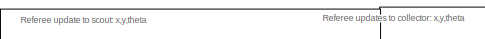
[diagram: root canvas - part 1/3, top center region]
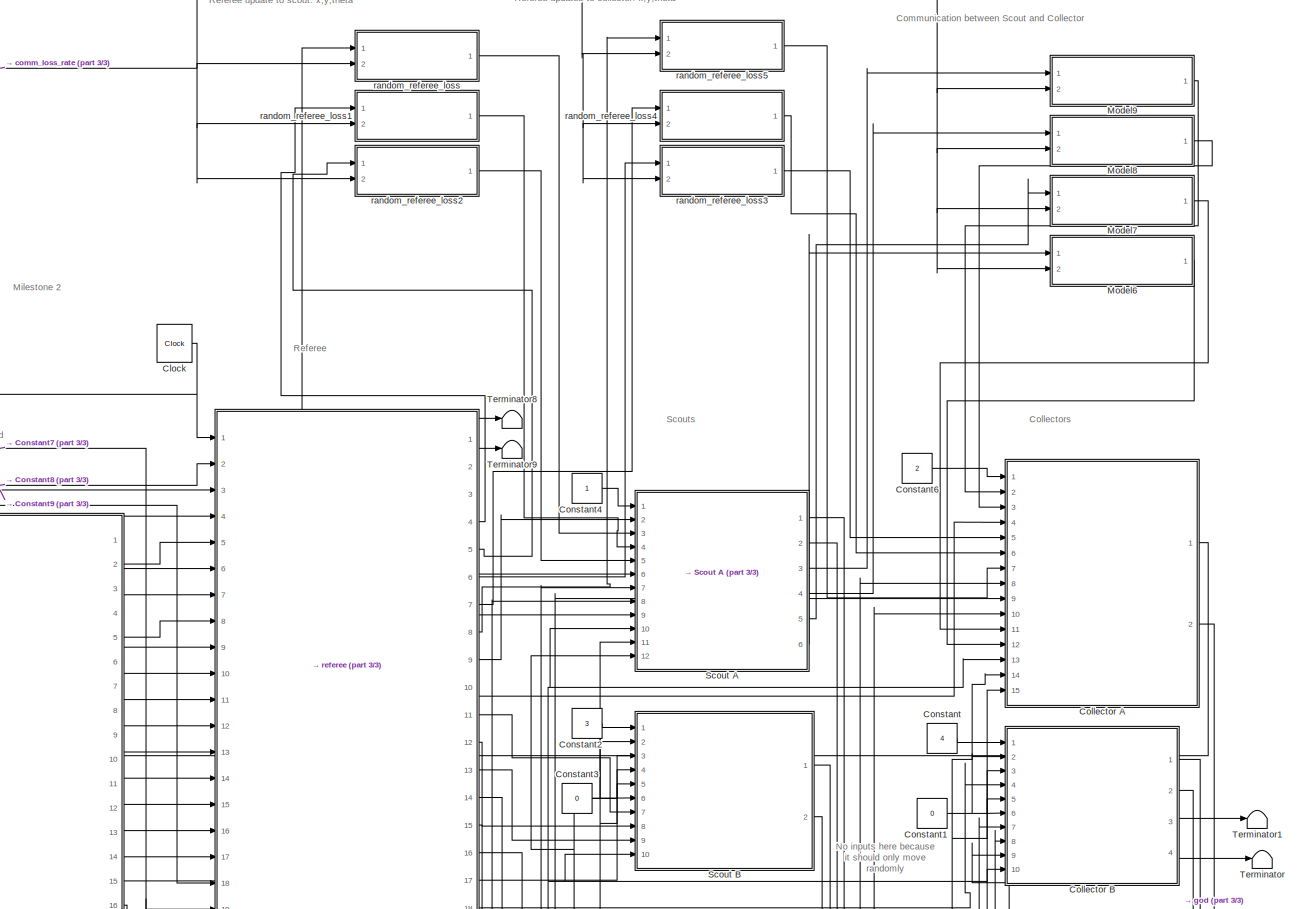
[diagram: root canvas - part 2/3, central region]
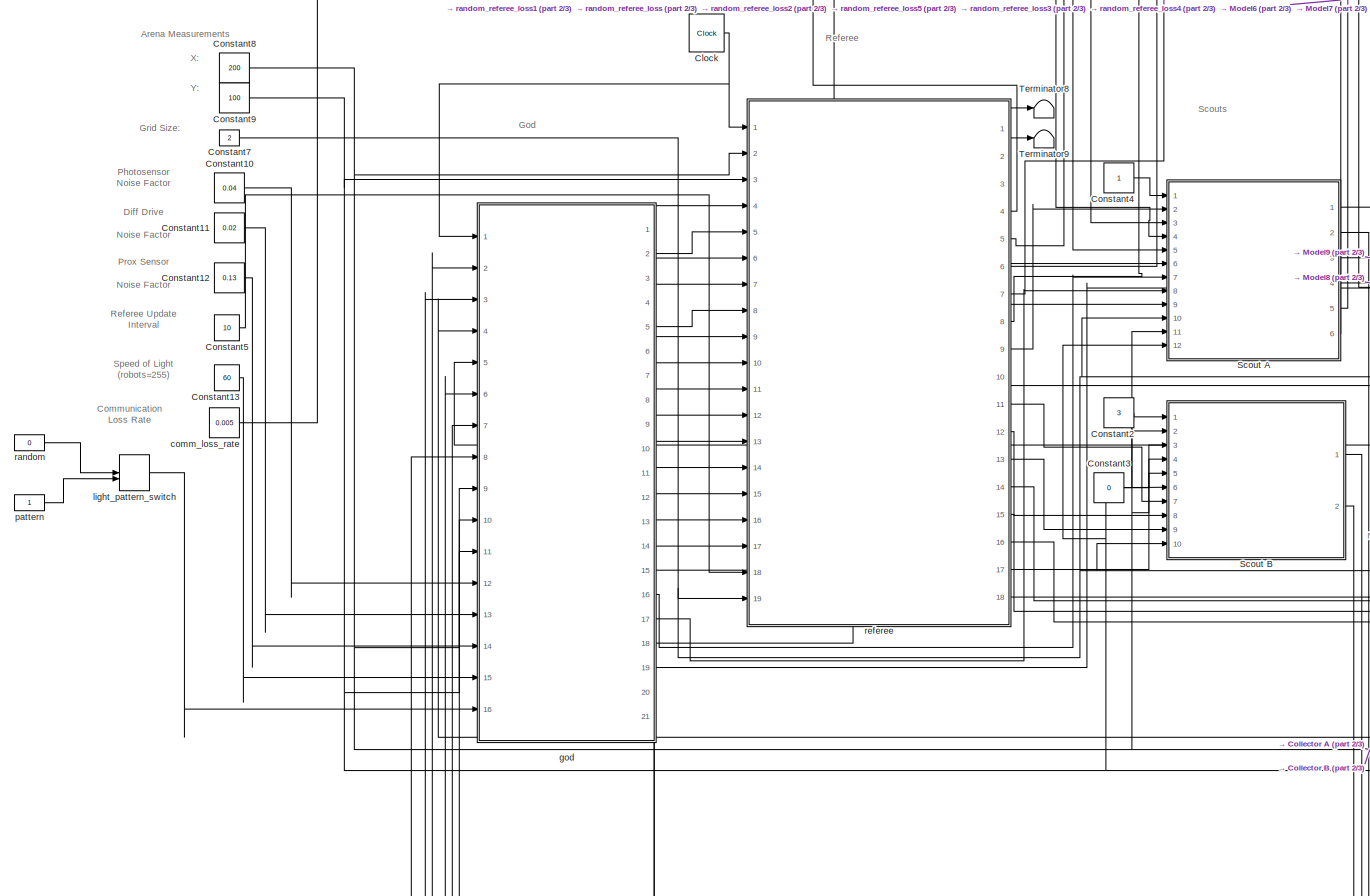
[diagram: root canvas - part 3/3, full width, middle band]
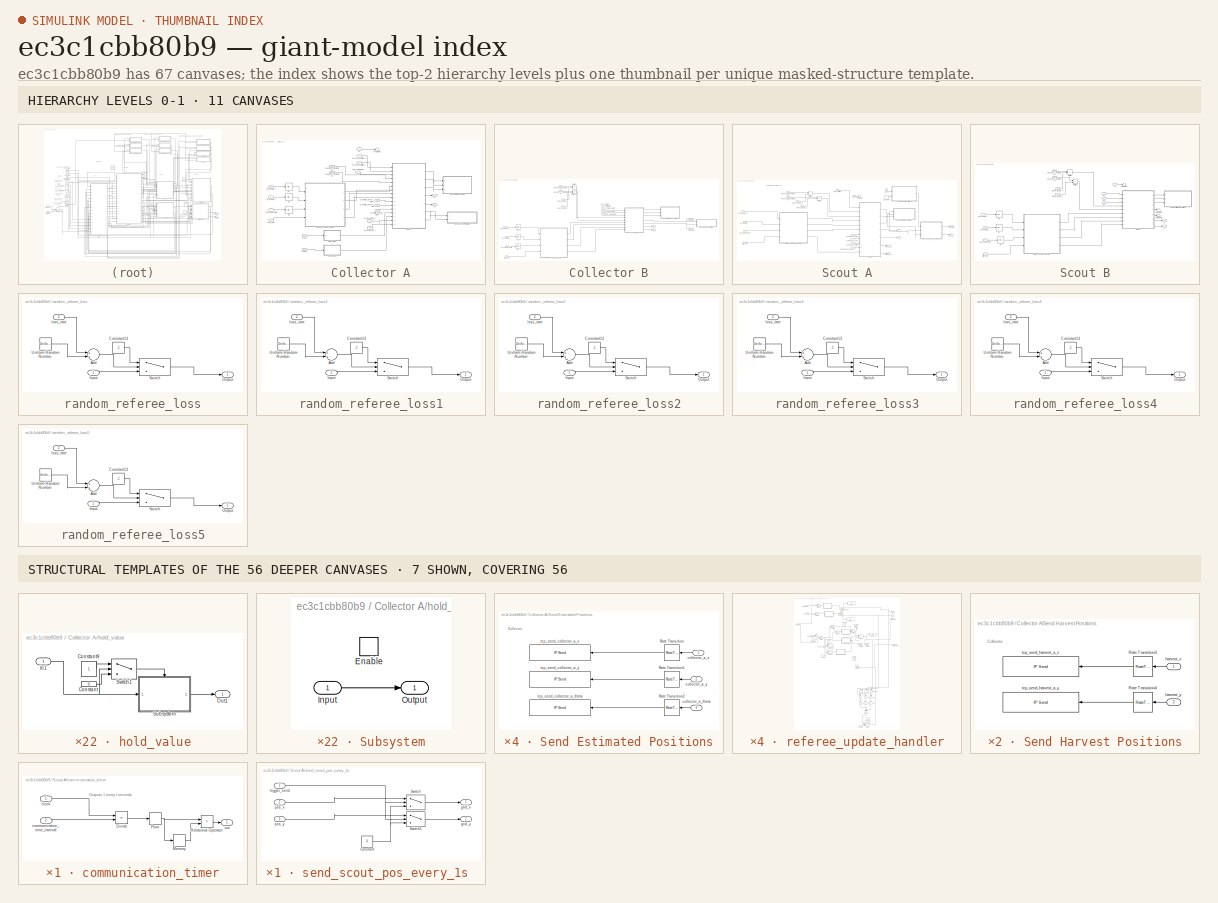
[diagram: thumbnail index - top-2 hierarchy levels (11 canvases) + 7 structural-template representatives of the remaining 56 canvases]
MODEL slx_ec3c1cbb80b9
KIND model
CONFIG AbsTol = auto
CONFIG EnableMultiTasking = off
CONFIG FixedStep = 0.01
CONFIG MaxStep = auto
CONFIG MinStep = auto
CONFIG RelTol = 1e-5
CONFIG SampleTimeConstraint = Unconstrained
CONFIG Solver = VariableStepAuto
CONFIG SolverName = VariableStepAuto
CONFIG StartTime = 0.0
CONFIG StopTime = 120
BLOCK [Clock] Clock
  Decimation = 1
  DisplayTime = on
BLOCK [SubSystem] Collector A
  Ports = [15, 2]
  RequestExecContextInheritance = off
BLOCK [InitialCondition] Collector A/IC
  Value = 0
BLOCK [InitialCondition] Collector A/IC1
  Value = 49
BLOCK [InitialCondition] Collector A/IC2
  Value = 0
BLOCK [Inport] Collector A/ID
  IconDisplay = Port number
BLOCK [ModelReference] Collector A/Model
  ModelNameDialog = own_collector.slx
  ModelReferenceVersion = 1.512
  Ports = [16, 7]
BLOCK [Inport] Collector A/OFF_CONDITION
  IconDisplay = Port number
  OutDataTypeStr = boolean
  Port = 4
BLOCK [SubSystem] Collector A/Send Estimated Positions
  Ports = [3]
  RequestExecContextInheritance = off
BLOCK [RateTransition] Collector A/Send Estimated Positions/Rate Transition
  OutPortSampleTime = 0.05
BLOCK [RateTransition] Collector A/Send Estimated Positions/Rate Transition1
  OutPortSampleTime = 0.05
BLOCK [RateTransition] Collector A/Send Estimated Positions/Rate Transition2
  OutPortSampleTime = 0.05
BLOCK [Inport] Collector A/Send Estimated Positions/collector_a_theta
  IconDisplay = Port number
  Port = 3
BLOCK [Inport] Collector A/Send Estimated Positions/collector_a_x
  IconDisplay = Port number
BLOCK [Inport] Collector A/Send Estimated Positions/collector_a_y
  IconDisplay = Port number
  Port = 2
BLOCK [Reference] Collector A/Send Estimated Positions/tcp_send_collector_a_theta  REF=instrumentlib/TCP//IP Send
  Ports = [1]
  SourceBlock = instrumentlib/TCP//IP Send
  SourceProductBaseCode = IC
  SourceProductName = Instrument Control Toolbox
  SourceType = TCP/IP Send
BLOCK [Reference] Collector A/Send Estimated Positions/tcp_send_collector_a_x  REF=instrumentlib/TCP//IP Send
  Ports = [1]
  SourceBlock = instrumentlib/TCP//IP Send
  SourceProductBaseCode = IC
  SourceProductName = Instrument Control Toolbox
  SourceType = TCP/IP Send
BLOCK [Reference] Collector A/Send Estimated Positions/tcp_send_collector_a_y  REF=instrumentlib/TCP//IP Send
  Ports = [1]
  SourceBlock = instrumentlib/TCP//IP Send
  SourceProductBaseCode = IC
  SourceProductName = Instrument Control Toolbox
  SourceType = TCP/IP Send
BLOCK [SubSystem] Collector A/Send Harvest Positions
  Ports = [2]
  RequestExecContextInheritance = off
BLOCK [RateTransition] Collector A/Send Harvest Positions/Rate Transition3
  OutPortSampleTime = 0.5
BLOCK [RateTransition] Collector A/Send Harvest Positions/Rate Transition4
  OutPortSampleTime = 0.5
BLOCK [Inport] Collector A/Send Harvest Positions/harvest_x
  IconDisplay = Port number
BLOCK [Inport] Collector A/Send Harvest Positions/harvest_y
  IconDisplay = Port number
  Port = 2
BLOCK [Reference] Collector A/Send Harvest Positions/tcp_send_harvest_a_x  REF=instrumentlib/TCP//IP Send
  Ports = [1]
  SourceBlock = instrumentlib/TCP//IP Send
  SourceProductBaseCode = IC
  SourceProductName = Instrument Control Toolbox
  SourceType = TCP/IP Send
BLOCK [Reference] Collector A/Send Harvest Positions/tcp_send_harvest_a_y  REF=instrumentlib/TCP//IP Send
  Ports = [1]
  SourceBlock = instrumentlib/TCP//IP Send
  SourceProductBaseCode = IC
  SourceProductName = Instrument Control Toolbox
  SourceType = TCP/IP Send
BLOCK [Terminator] Collector A/Terminator
BLOCK [Inport] Collector A/arena_length_x
  IconDisplay = Port number
  Port = 14
BLOCK [Inport] Collector A/arena_length_y
  IconDisplay = Port number
  Port = 15
BLOCK [Inport] Collector A/grid_size
  IconDisplay = Port number
  Port = 13
BLOCK [Inport] Collector A/harvest_position_x
  IconDisplay = Port number
  Port = 2
BLOCK [Inport] Collector A/harvest_position_y
  IconDisplay = Port number
  Port = 3
BLOCK [SubSystem] Collector A/hold_value
  Ports = [1, 1]
  RequestExecContextInheritance = off
BLOCK [Constant] Collector A/hold_value/Constant
  Value = 0
BLOCK [Constant] Collector A/hold_value/Constant9
BLOCK [Inport] Collector A/hold_value/In1
  IconDisplay = Port number
BLOCK [Outport] Collector A/hold_value/Out1
  IconDisplay = Port number
BLOCK [SubSystem] Collector A/hold_value/Subsystem
  Ports = [1, 1, 1]
  RequestExecContextInheritance = off
BLOCK [EnablePort] Collector A/hold_value/Subsystem/Enable
  Ports = []
BLOCK [Inport] Collector A/hold_value/Subsystem/Input
  IconDisplay = Port number
BLOCK [Outport] Collector A/hold_value/Subsystem/Output
  IconDisplay = Port number
BLOCK [Switch] Collector A/hold_value/Switch1
  Criteria = u2 > Threshold
  InputSameDT = off
  SaturateOnIntegerOverflow = off
BLOCK [SubSystem] Collector A/hold_value1
  Ports = [1, 1]
  RequestExecContextInheritance = off
BLOCK [Constant] Collector A/hold_value1/Constant
  Value = 0
BLOCK [Constant] Collector A/hold_value1/Constant9
BLOCK [Inport] Collector A/hold_value1/In1
  IconDisplay = Port number
BLOCK [Outport] Collector A/hold_value1/Out1
  IconDisplay = Port number
BLOCK [SubSystem] Collector A/hold_value1/Subsystem
  Ports = [1, 1, 1]
  RequestExecContextInheritance = off
BLOCK [EnablePort] Collector A/hold_value1/Subsystem/Enable
  Ports = []
BLOCK [Inport] Collector A/hold_value1/Subsystem/Input
  IconDisplay = Port number
BLOCK [Outport] Collector A/hold_value1/Subsystem/Output
  IconDisplay = Port number
BLOCK [Switch] Collector A/hold_value1/Switch1
  Criteria = u2 > Threshold
  InputSameDT = off
  SaturateOnIntegerOverflow = off
BLOCK [Inport] Collector A/proximity_sensor_front
  IconDisplay = Port number
  Port = 8
BLOCK [Inport] Collector A/proximity_sensor_left
  IconDisplay = Port number
  Port = 9
BLOCK [Inport] Collector A/proximity_sensor_right
  IconDisplay = Port number
  Port = 10
BLOCK [UniformRandomNumber] Collector A/random_x_destination
  Maximum = 3
  Minimum = -3
  SampleTime = 1
  Seed = 13
BLOCK [UniformRandomNumber] Collector A/random_y_destination
  Maximum = 3
  Minimum = -3
  SampleTime = 1
  Seed = 15
BLOCK [Inport] Collector A/ref_update_theta
  IconDisplay = Port number
  Port = 7
BLOCK [Inport] Collector A/ref_update_x
  IconDisplay = Port number
  Port = 5
BLOCK [Inport] Collector A/ref_update_y
  IconDisplay = Port number
  Port = 6
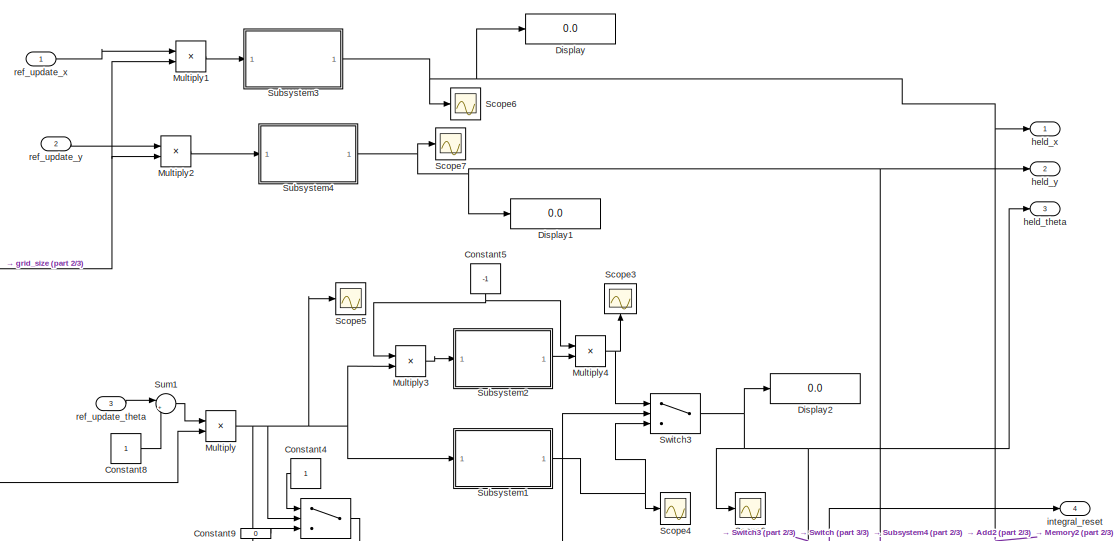
[diagram: Collector A/referee_update_handler - part 1/3, full width, top band]
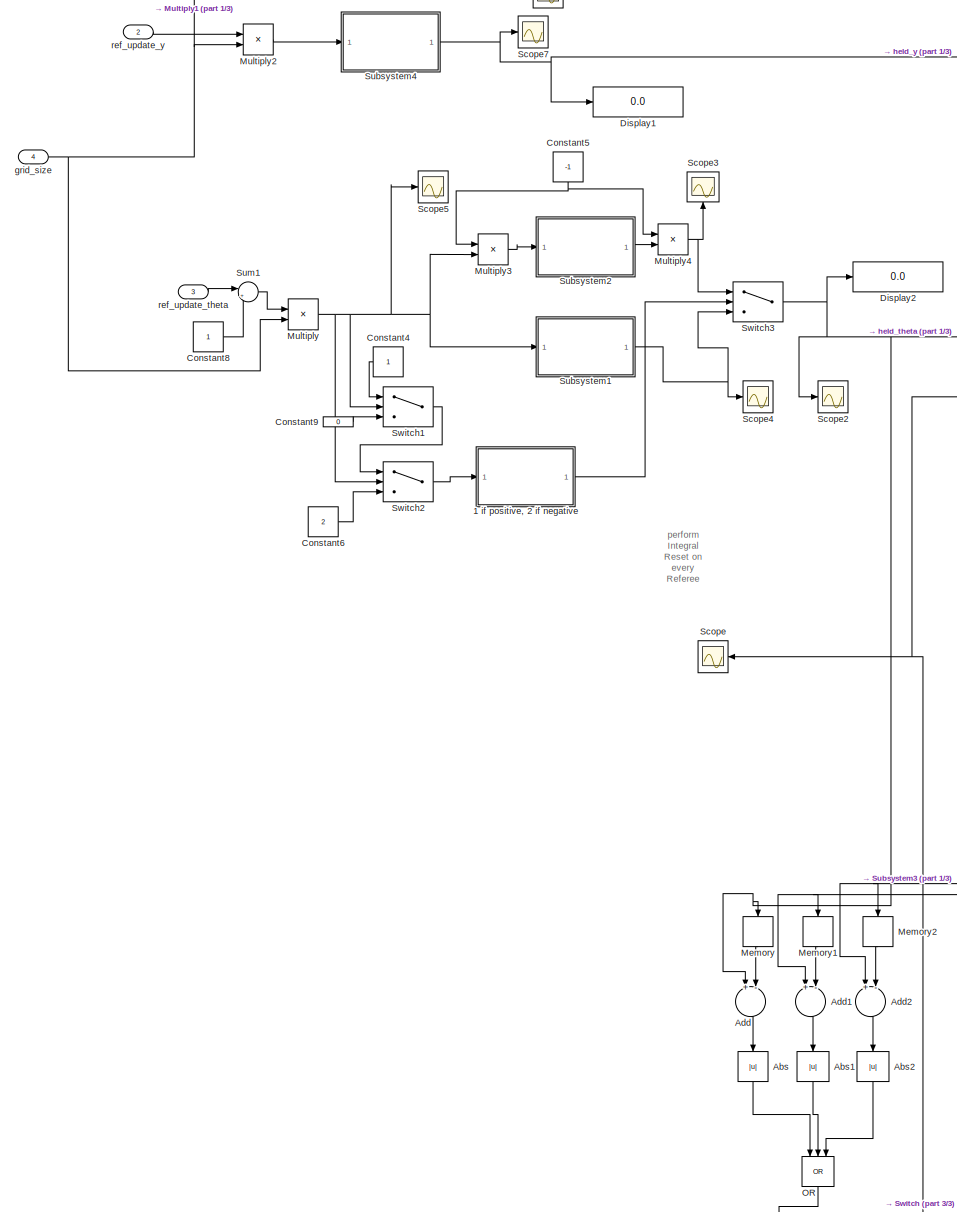
[diagram: Collector A/referee_update_handler - part 2/3, most of the canvas]
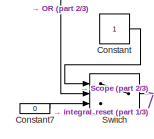
[diagram: Collector A/referee_update_handler - part 3/3, bottom center region]
BLOCK [SubSystem] Collector A/referee_update_handler
  Ports = [4, 4]
  RequestExecContextInheritance = off
BLOCK [SubSystem] Collector A/referee_update_handler/1 if positive, 2 if negative
  Ports = [1, 1]
  RequestExecContextInheritance = off
BLOCK [Constant] Collector A/referee_update_handler/1 if positive, 2 if negative/Constant
  Value = 0
BLOCK [Constant] Collector A/referee_update_handler/1 if positive, 2 if negative/Constant9
BLOCK [Inport] Collector A/referee_update_handler/1 if positive, 2 if negative/In1
  IconDisplay = Port number
BLOCK [Outport] Collector A/referee_update_handler/1 if positive, 2 if negative/Out1
  IconDisplay = Port number
BLOCK [SubSystem] Collector A/referee_update_handler/1 if positive, 2 if negative/Subsystem
  Ports = [1, 1, 1]
  RequestExecContextInheritance = off
BLOCK [EnablePort] Collector A/referee_update_handler/1 if positive, 2 if negative/Subsystem/Enable
  Ports = []
BLOCK [Inport] Collector A/referee_update_handler/1 if positive, 2 if negative/Subsystem/Input
  IconDisplay = Port number
BLOCK [Outport] Collector A/referee_update_handler/1 if positive, 2 if negative/Subsystem/Output
  IconDisplay = Port number
BLOCK [Switch] Collector A/referee_update_handler/1 if positive, 2 if negative/Switch1
  Criteria = u2 > Threshold
  InputSameDT = off
  SaturateOnIntegerOverflow = off
BLOCK [Abs] Collector A/referee_update_handler/Abs
  SaturateOnIntegerOverflow = off
BLOCK [Abs] Collector A/referee_update_handler/Abs1
  SaturateOnIntegerOverflow = off
BLOCK [Abs] Collector A/referee_update_handler/Abs2
  SaturateOnIntegerOverflow = off
BLOCK [Sum] Collector A/referee_update_handler/Add
  InputSameDT = off
  Inputs = +-
  OutDataTypeStr = Inherit: Inherit via internal rule
  Ports = [2, 1]
  SaturateOnIntegerOverflow = off
BLOCK [Sum] Collector A/referee_update_handler/Add1
  InputSameDT = off
  Inputs = +-
  OutDataTypeStr = Inherit: Inherit via internal rule
  Ports = [2, 1]
  SaturateOnIntegerOverflow = off
BLOCK [Sum] Collector A/referee_update_handler/Add2
  InputSameDT = off
  Inputs = +-
  OutDataTypeStr = Inherit: Inherit via internal rule
  Ports = [2, 1]
  SaturateOnIntegerOverflow = off
BLOCK [Constant] Collector A/referee_update_handler/Constant
BLOCK [Constant] Collector A/referee_update_handler/Constant4
BLOCK [Constant] Collector A/referee_update_handler/Constant5
  Value = -1
BLOCK [Constant] Collector A/referee_update_handler/Constant6
  Value = 2
BLOCK [Constant] Collector A/referee_update_handler/Constant7
  Value = 0
BLOCK [Constant] Collector A/referee_update_handler/Constant8
BLOCK [Constant] Collector A/referee_update_handler/Constant9
  Value = 0
BLOCK [Display] Collector A/referee_update_handler/Display
  Decimation = 1
  Ports = [1]
BLOCK [Display] Collector A/referee_update_handler/Display1
  Decimation = 1
  Ports = [1]
BLOCK [Display] Collector A/referee_update_handler/Display2
  Decimation = 1
  Ports = [1]
BLOCK [Memory] Collector A/referee_update_handler/Memory
BLOCK [Memory] Collector A/referee_update_handler/Memory1
BLOCK [Memory] Collector A/referee_update_handler/Memory2
BLOCK [Product] Collector A/referee_update_handler/Multiply
  InputSameDT = off
  OutDataTypeStr = Inherit: Inherit via internal rule
  Ports = [2, 1]
  RndMeth = Floor
  SaturateOnIntegerOverflow = off
BLOCK [Product] Collector A/referee_update_handler/Multiply1
  InputSameDT = off
  OutDataTypeStr = Inherit: Inherit via internal rule
  Ports = [2, 1]
  RndMeth = Floor
  SaturateOnIntegerOverflow = off
BLOCK [Product] Collector A/referee_update_handler/Multiply2
  InputSameDT = off
  OutDataTypeStr = Inherit: Inherit via internal rule
  Ports = [2, 1]
  RndMeth = Floor
  SaturateOnIntegerOverflow = off
BLOCK [Product] Collector A/referee_update_handler/Multiply3
  InputSameDT = off
  OutDataTypeStr = Inherit: Inherit via internal rule
  Ports = [2, 1]
  RndMeth = Floor
  SaturateOnIntegerOverflow = off
BLOCK [Product] Collector A/referee_update_handler/Multiply4
  InputSameDT = off
  OutDataTypeStr = Inherit: Inherit via internal rule
  Ports = [2, 1]
  RndMeth = Floor
  SaturateOnIntegerOverflow = off
BLOCK [Logic] Collector A/referee_update_handler/OR
  AllPortsSameDT = off
  IconShape = distinctive
  Inputs = 3
  Operator = OR
  OutDataTypeStr = boolean
  Ports = [3, 1]
BLOCK [Scope] Collector A/referee_update_handler/Scope
  Floating = off
  NumInputPorts = 1
  Ports = [1]
  ScopeSpecificationString = Simulink.scopes.TimeScopeBlockCfg('CurrentConfiguration', extmgr.ConfigurationSet(extmgr.Configuration('Core','General UI',true),extmgr.Configuration('Core','Source UI',true),extmgr.Configuration('Sources','WiredSimulink',true,'DataLoggingVariableName','ScopeData1'),extmgr.Configuration('Visuals','Time Domain',true,'SerializedDisplays',{struct('MinYLimReal','-0.125','MaxYLimReal','1.125','YLabelRe...<+1382ch>  <repeated x4 — deduplicated; at blocks: Scope>
BLOCK [Scope] Collector A/referee_update_handler/Scope2
  Floating = off
  NumInputPorts = 1
  Ports = [1]
  ScopeSpecificationString = Simulink.scopes.TimeScopeBlockCfg('CurrentConfiguration', extmgr.ConfigurationSet(extmgr.Configuration('Core','General UI',true),extmgr.Configuration('Core','Source UI',true),extmgr.Configuration('Sources','WiredSimulink',true,'DataLoggingVariableName','ScopeData3'),extmgr.Configuration('Visuals','Time Domain',true,'SerializedDisplays',{struct('MinYLimReal','-112.25','MaxYLimReal','110.25','YLabel...<+1388ch>
BLOCK [Scope] Collector A/referee_update_handler/Scope3
  Floating = off
  NumInputPorts = 1
  Ports = [1]
  ScopeSpecificationString = Simulink.scopes.TimeScopeBlockCfg('CurrentConfiguration', extmgr.ConfigurationSet(extmgr.Configuration('Core','General UI',true),extmgr.Configuration('Core','Source UI',true),extmgr.Configuration('Sources','WiredSimulink',true,'DataLoggingVariableName','ScopeData4'),extmgr.Configuration('Visuals','Time Domain',true,'SerializedDisplays',{struct('MinYLimReal','-180','MaxYLimReal','180','YLabelReal',...<+1485ch>  <repeated x4 — deduplicated; at blocks: Scope3>
BLOCK [Scope] Collector A/referee_update_handler/Scope4
  Floating = off
  NumInputPorts = 1
  Ports = [1]
  ScopeSpecificationString = Simulink.scopes.TimeScopeBlockCfg('CurrentConfiguration', extmgr.ConfigurationSet(extmgr.Configuration('Core','General UI',true),extmgr.Configuration('Core','Source UI',true),extmgr.Configuration('Sources','WiredSimulink',true,'DataLoggingVariableName','ScopeData5'),extmgr.Configuration('Visuals','Time Domain',true,'SerializedDisplays',{struct('MinYLimReal','-180','MaxYLimReal','180','YLabelReal',...<+1485ch>  <repeated x4 — deduplicated; at blocks: Scope4>
BLOCK [Scope] Collector A/referee_update_handler/Scope5
  Floating = off
  NumInputPorts = 1
  Ports = [1]
  ScopeSpecificationString = Simulink.scopes.TimeScopeBlockCfg('CurrentConfiguration', extmgr.ConfigurationSet(extmgr.Configuration('Core','General UI',true),extmgr.Configuration('Core','Source UI',true),extmgr.Configuration('Sources','WiredSimulink',true,'DataLoggingVariableName','ScopeData1'),extmgr.Configuration('Visuals','Time Domain',true,'SerializedDisplays',{struct('MinYLimReal','-180','MaxYLimReal','180','YLabelReal',...<+1446ch>  <repeated x4 — deduplicated; at blocks: Scope5>
BLOCK [Scope] Collector A/referee_update_handler/Scope6
  Floating = off
  NumInputPorts = 1
  Ports = [1]
  ScopeSpecificationString = Simulink.scopes.TimeScopeBlockCfg('CurrentConfiguration', extmgr.ConfigurationSet(extmgr.Configuration('Core','General UI',true),extmgr.Configuration('Core','Source UI',true),extmgr.Configuration('Sources','WiredSimulink',true,'DataLoggingVariableName','ScopeData2'),extmgr.Configuration('Visuals','Time Domain',true,'SerializedDisplays',{struct('MinYLimReal','-1.00000','MaxYLimReal','1.00000','YLab...<+1369ch>  <repeated x3 — deduplicated; at blocks: Scope6>
BLOCK [Scope] Collector A/referee_update_handler/Scope7
  Floating = off
  NumInputPorts = 1
  Ports = [1]
  ScopeSpecificationString = Simulink.scopes.TimeScopeBlockCfg('CurrentConfiguration', extmgr.ConfigurationSet(extmgr.Configuration('Core','General UI',true),extmgr.Configuration('Core','Source UI',true),extmgr.Configuration('Sources','WiredSimulink',true,'DataLoggingVariableName','ScopeData3'),extmgr.Configuration('Visuals','Time Domain',true,'SerializedDisplays',{struct('MinYLimReal','-1.00000','MaxYLimReal','1.00000','YLab...<+1416ch>  <repeated x3 — deduplicated; at blocks: Scope7>
BLOCK [SubSystem] Collector A/referee_update_handler/Subsystem1
  Ports = [1, 1]
  RequestExecContextInheritance = off
BLOCK [Constant] Collector A/referee_update_handler/Subsystem1/Constant
  Value = 0
BLOCK [Constant] Collector A/referee_update_handler/Subsystem1/Constant9
BLOCK [Inport] Collector A/referee_update_handler/Subsystem1/In1
  IconDisplay = Port number
BLOCK [Outport] Collector A/referee_update_handler/Subsystem1/Out1
  IconDisplay = Port number
BLOCK [SubSystem] Collector A/referee_update_handler/Subsystem1/Subsystem
  Ports = [1, 1, 1]
  RequestExecContextInheritance = off
BLOCK [EnablePort] Collector A/referee_update_handler/Subsystem1/Subsystem/Enable
  Ports = []
BLOCK [Inport] Collector A/referee_update_handler/Subsystem1/Subsystem/Input
  IconDisplay = Port number
BLOCK [Outport] Collector A/referee_update_handler/Subsystem1/Subsystem/Output
  IconDisplay = Port number
BLOCK [Switch] Collector A/referee_update_handler/Subsystem1/Switch1
  Criteria = u2 > Threshold
  InputSameDT = off
  SaturateOnIntegerOverflow = off
BLOCK [SubSystem] Collector A/referee_update_handler/Subsystem2
  Ports = [1, 1]
  RequestExecContextInheritance = off
BLOCK [Constant] Collector A/referee_update_handler/Subsystem2/Constant
  Value = 0
BLOCK [Constant] Collector A/referee_update_handler/Subsystem2/Constant9
BLOCK [Inport] Collector A/referee_update_handler/Subsystem2/In1
  IconDisplay = Port number
BLOCK [Outport] Collector A/referee_update_handler/Subsystem2/Out1
  IconDisplay = Port number
BLOCK [SubSystem] Collector A/referee_update_handler/Subsystem2/Subsystem
  Ports = [1, 1, 1]
  RequestExecContextInheritance = off
BLOCK [EnablePort] Collector A/referee_update_handler/Subsystem2/Subsystem/Enable
  Ports = []
BLOCK [Inport] Collector A/referee_update_handler/Subsystem2/Subsystem/Input
  IconDisplay = Port number
BLOCK [Outport] Collector A/referee_update_handler/Subsystem2/Subsystem/Output
  IconDisplay = Port number
BLOCK [Switch] Collector A/referee_update_handler/Subsystem2/Switch1
  Criteria = u2 > Threshold
  InputSameDT = off
  SaturateOnIntegerOverflow = off
BLOCK [SubSystem] Collector A/referee_update_handler/Subsystem3
  Ports = [1, 1]
  RequestExecContextInheritance = off
BLOCK [Constant] Collector A/referee_update_handler/Subsystem3/Constant1
  Value = 0
BLOCK [Constant] Collector A/referee_update_handler/Subsystem3/Constant9
BLOCK [Inport] Collector A/referee_update_handler/Subsystem3/In1
  IconDisplay = Port number
BLOCK [Outport] Collector A/referee_update_handler/Subsystem3/Out1
  IconDisplay = Port number
BLOCK [SubSystem] Collector A/referee_update_handler/Subsystem3/Subsystem
  Ports = [1, 1, 1]
  RequestExecContextInheritance = off
BLOCK [EnablePort] Collector A/referee_update_handler/Subsystem3/Subsystem/Enable
  Ports = []
BLOCK [Inport] Collector A/referee_update_handler/Subsystem3/Subsystem/Input
  IconDisplay = Port number
BLOCK [Outport] Collector A/referee_update_handler/Subsystem3/Subsystem/Output
  IconDisplay = Port number
BLOCK [Switch] Collector A/referee_update_handler/Subsystem3/Switch1
  Criteria = u2 > Threshold
  InputSameDT = off
  SaturateOnIntegerOverflow = off
BLOCK [SubSystem] Collector A/referee_update_handler/Subsystem4
  Ports = [1, 1]
  RequestExecContextInheritance = off
BLOCK [Constant] Collector A/referee_update_handler/Subsystem4/Constant1
  Value = 0
BLOCK [Constant] Collector A/referee_update_handler/Subsystem4/Constant9
BLOCK [Inport] Collector A/referee_update_handler/Subsystem4/In1
  IconDisplay = Port number
BLOCK [Outport] Collector A/referee_update_handler/Subsystem4/Out1
  IconDisplay = Port number
BLOCK [SubSystem] Collector A/referee_update_handler/Subsystem4/Subsystem
  Ports = [1, 1, 1]
  RequestExecContextInheritance = off
BLOCK [EnablePort] Collector A/referee_update_handler/Subsystem4/Subsystem/Enable
  Ports = []
BLOCK [Inport] Collector A/referee_update_handler/Subsystem4/Subsystem/Input
  IconDisplay = Port number
BLOCK [Outport] Collector A/referee_update_handler/Subsystem4/Subsystem/Output
  IconDisplay = Port number
BLOCK [Switch] Collector A/referee_update_handler/Subsystem4/Switch1
  Criteria = u2 > Threshold
  InputSameDT = off
  SaturateOnIntegerOverflow = off
BLOCK [Sum] Collector A/referee_update_handler/Sum1
  IconShape = round
  InputSameDT = off
  Inputs = |++
  OutDataTypeStr = Inherit: Inherit via internal rule
  Ports = [2, 1]
  SaturateOnIntegerOverflow = off
BLOCK [Switch] Collector A/referee_update_handler/Switch
  Criteria = u2 > Threshold
  InputSameDT = off
  SaturateOnIntegerOverflow = off
BLOCK [Switch] Collector A/referee_update_handler/Switch1
  Criteria = u2 > Threshold
  InputSameDT = off
  SaturateOnIntegerOverflow = off
BLOCK [Switch] Collector A/referee_update_handler/Switch2
  InputSameDT = off
  SaturateOnIntegerOverflow = off
BLOCK [Switch] Collector A/referee_update_handler/Switch3
  Criteria = u2 > Threshold
  InputSameDT = off
  SaturateOnIntegerOverflow = off
  Threshold = 1
BLOCK [Inport] Collector A/referee_update_handler/grid_size 
  IconDisplay = Port number
  Port = 4
BLOCK [Outport] Collector A/referee_update_handler/held_theta
  IconDisplay = Port number
  Port = 3
BLOCK [Outport] Collector A/referee_update_handler/held_x
  IconDisplay = Port number
BLOCK [Outport] Collector A/referee_update_handler/held_y
  IconDisplay = Port number
  Port = 2
BLOCK [Outport] Collector A/referee_update_handler/integral_reset
  IconDisplay = Port number
  Port = 4
BLOCK [Inport] Collector A/referee_update_handler/ref_update_theta
  IconDisplay = Port number
  Port = 3
BLOCK [Inport] Collector A/referee_update_handler/ref_update_x
  IconDisplay = Port number
BLOCK [Inport] Collector A/referee_update_handler/ref_update_y
  IconDisplay = Port number
  Port = 2
BLOCK [Inport] Collector A/scout_x
  IconDisplay = Port number
  Port = 11
BLOCK [Inport] Collector A/scout_y
  IconDisplay = Port number
  Port = 12
BLOCK [Outport] Collector A/vl
  IconDisplay = Port number
  Port = 2
BLOCK [Outport] Collector A/vr
  IconDisplay = Port number
BLOCK [SubSystem] Collector B
  Ports = [10, 4]
  RequestExecContextInheritance = off
BLOCK [ModelReference] Collector B/Collector B
  ModelNameDialog = collectors
  ModelReferenceVersion = 1.308
  Ports = [9, 7]
BLOCK [InitialCondition] Collector B/IC
  Value = 0
BLOCK [InitialCondition] Collector B/IC1
  Value = 90
BLOCK [InitialCondition] Collector B/IC2
  Value = 99
BLOCK [Inport] Collector B/ID
  IconDisplay = Port number
BLOCK [Product] Collector B/Multiply
  InputSameDT = off
  OutDataTypeStr = Inherit: Inherit via internal rule
  Ports = [2, 1]
  RndMeth = Floor
  SaturateOnIntegerOverflow = off
BLOCK [Product] Collector B/Multiply1
  InputSameDT = off
  OutDataTypeStr = Inherit: Inherit via internal rule
  Ports = [2, 1]
  RndMeth = Floor
  SaturateOnIntegerOverflow = off
BLOCK [Inport] Collector B/OFF_CONDITION
  IconDisplay = Port number
  OutDataTypeStr = boolean
  Port = 4
BLOCK [SubSystem] Collector B/Send Estimated Positions
  Commented = on
  Ports = [3]
  RequestExecContextInheritance = off
BLOCK [RateTransition] Collector B/Send Estimated Positions/Rate Transition10
  OutPortSampleTime = 0.1
BLOCK [RateTransition] Collector B/Send Estimated Positions/Rate Transition11
  OutPortSampleTime = 0.1
BLOCK [RateTransition] Collector B/Send Estimated Positions/Rate Transition9
  OutPortSampleTime = 0.1
BLOCK [Inport] Collector B/Send Estimated Positions/collector_b_theta
  IconDisplay = Port number
  Port = 3
BLOCK [Inport] Collector B/Send Estimated Positions/collector_b_x
  IconDisplay = Port number
BLOCK [Inport] Collector B/Send Estimated Positions/collector_b_y
  IconDisplay = Port number
  Port = 2
BLOCK [Reference] Collector B/Send Estimated Positions/tcp_send_collector_b_theta  REF=instrumentlib/TCP//IP Send
  Ports = [1]
  SourceBlock = instrumentlib/TCP//IP Send
  SourceProductBaseCode = IC
  SourceProductName = Instrument Control Toolbox
  SourceType = TCP/IP Send
BLOCK [Reference] Collector B/Send Estimated Positions/tcp_send_collector_b_x  REF=instrumentlib/TCP//IP Send
  Ports = [1]
  SourceBlock = instrumentlib/TCP//IP Send
  SourceProductBaseCode = IC
  SourceProductName = Instrument Control Toolbox
  SourceType = TCP/IP Send
BLOCK [Reference] Collector B/Send Estimated Positions/tcp_send_collector_b_y  REF=instrumentlib/TCP//IP Send
  Ports = [1]
  SourceBlock = instrumentlib/TCP//IP Send
  SourceProductBaseCode = IC
  SourceProductName = Instrument Control Toolbox
  SourceType = TCP/IP Send
BLOCK [SubSystem] Collector B/Send Harvest Positions
  Ports = [2]
  RequestExecContextInheritance = off
BLOCK [RateTransition] Collector B/Send Harvest Positions/Rate Transition3
  OutPortSampleTime = 0.5
BLOCK [RateTransition] Collector B/Send Harvest Positions/Rate Transition4
  OutPortSampleTime = 0.5
BLOCK [Inport] Collector B/Send Harvest Positions/harvest_x
  IconDisplay = Port number
BLOCK [Inport] Collector B/Send Harvest Positions/harvest_y
  IconDisplay = Port number
  Port = 2
BLOCK [Reference] Collector B/Send Harvest Positions/tcp_send_collector_b_theta2  REF=instrumentlib/TCP//IP Send
  Ports = [1]
  SourceBlock = instrumentlib/TCP//IP Send
  SourceProductBaseCode = IC
  SourceProductName = Instrument Control Toolbox
  SourceType = TCP/IP Send
BLOCK [Reference] Collector B/Send Harvest Positions/tcp_send_harvest_b_x  REF=instrumentlib/TCP//IP Send
  Ports = [1]
  SourceBlock = instrumentlib/TCP//IP Send
  SourceProductBaseCode = IC
  SourceProductName = Instrument Control Toolbox
  SourceType = TCP/IP Send
BLOCK [Terminator] Collector B/Terminator
BLOCK [Inport] Collector B/arena_length_x
  IconDisplay = Port number
  Port = 5
BLOCK [Inport] Collector B/arena_length_y
  IconDisplay = Port number
  Port = 6
BLOCK [Inport] Collector B/communication_x
  IconDisplay = Port number
  Port = 2
BLOCK [Inport] Collector B/communication_y
  IconDisplay = Port number
  Port = 3
BLOCK [Inport] Collector B/grid_size 
  IconDisplay = Port number
  Port = 10
BLOCK [Outport] Collector B/harvestB_x
  IconDisplay = Port number
  Port = 3
BLOCK [Outport] Collector B/harvestB_y
  IconDisplay = Port number
  Port = 4
BLOCK [UniformRandomNumber] Collector B/random_x_destination
  Maximum = .99
  Minimum = 0
  SampleTime = 1
  Seed = 18
BLOCK [UniformRandomNumber] Collector B/random_y_destination
  Maximum = .99
  Minimum = 0
  SampleTime = 1
  Seed = 19
BLOCK [Inport] Collector B/ref_update_theta
  IconDisplay = Port number
  Port = 9
BLOCK [Inport] Collector B/ref_update_x
  IconDisplay = Port number
  Port = 7
BLOCK [Inport] Collector B/ref_update_y
  IconDisplay = Port number
  Port = 8
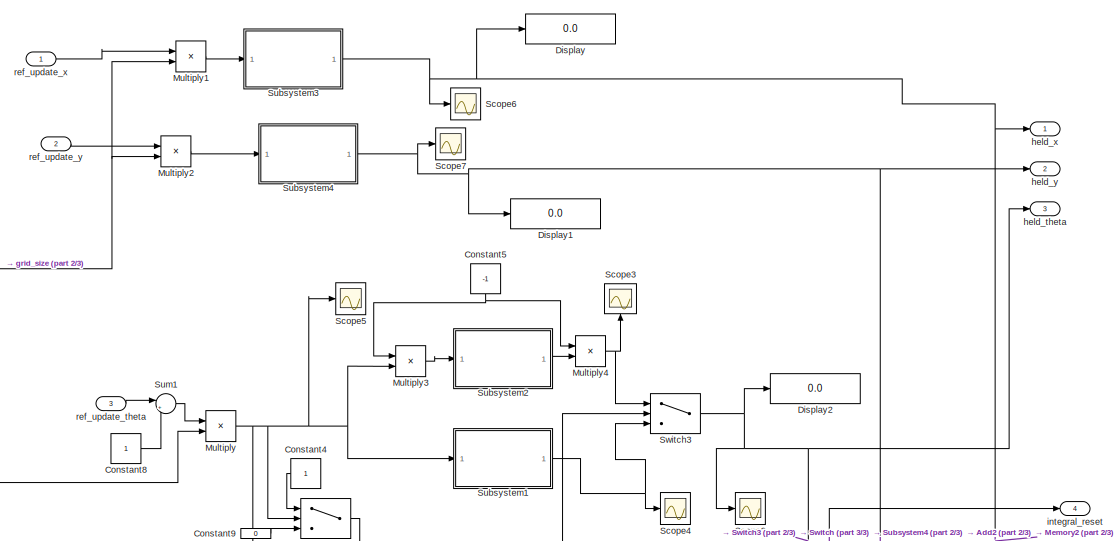
[diagram: Collector B/referee_update_handler - part 1/3, full width, top band]
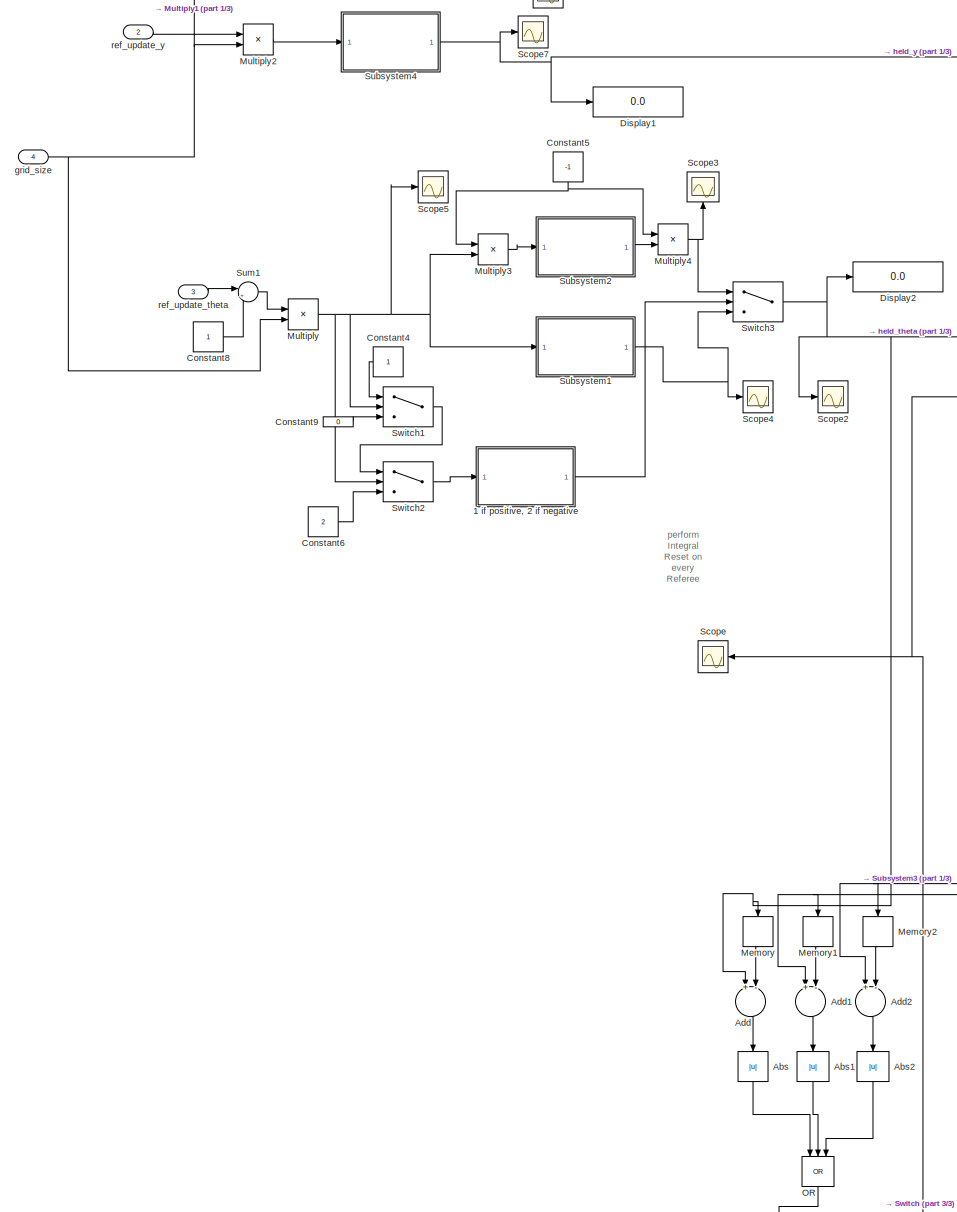
[diagram: Collector B/referee_update_handler - part 2/3, most of the canvas]
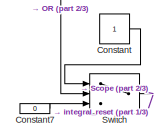
[diagram: Collector B/referee_update_handler - part 3/3, bottom center region]
BLOCK [SubSystem] Collector B/referee_update_handler
  Ports = [4, 4]
  RequestExecContextInheritance = off
BLOCK [SubSystem] Collector B/referee_update_handler/1 if positive, 2 if negative
  Ports = [1, 1]
  RequestExecContextInheritance = off
BLOCK [Constant] Collector B/referee_update_handler/1 if positive, 2 if negative/Constant
  Value = 0
BLOCK [Constant] Collector B/referee_update_handler/1 if positive, 2 if negative/Constant9
BLOCK [Inport] Collector B/referee_update_handler/1 if positive, 2 if negative/In1
  IconDisplay = Port number
BLOCK [Outport] Collector B/referee_update_handler/1 if positive, 2 if negative/Out1
  IconDisplay = Port number
BLOCK [SubSystem] Collector B/referee_update_handler/1 if positive, 2 if negative/Subsystem
  Ports = [1, 1, 1]
  RequestExecContextInheritance = off
BLOCK [EnablePort] Collector B/referee_update_handler/1 if positive, 2 if negative/Subsystem/Enable
  Ports = []
BLOCK [Inport] Collector B/referee_update_handler/1 if positive, 2 if negative/Subsystem/Input
  IconDisplay = Port number
BLOCK [Outport] Collector B/referee_update_handler/1 if positive, 2 if negative/Subsystem/Output
  IconDisplay = Port number
BLOCK [Switch] Collector B/referee_update_handler/1 if positive, 2 if negative/Switch1
  Criteria = u2 > Threshold
  InputSameDT = off
  SaturateOnIntegerOverflow = off
BLOCK [Abs] Collector B/referee_update_handler/Abs
  SaturateOnIntegerOverflow = off
BLOCK [Abs] Collector B/referee_update_handler/Abs1
  SaturateOnIntegerOverflow = off
BLOCK [Abs] Collector B/referee_update_handler/Abs2
  SaturateOnIntegerOverflow = off
BLOCK [Sum] Collector B/referee_update_handler/Add
  InputSameDT = off
  Inputs = +-
  OutDataTypeStr = Inherit: Inherit via internal rule
  Ports = [2, 1]
  SaturateOnIntegerOverflow = off
BLOCK [Sum] Collector B/referee_update_handler/Add1
  InputSameDT = off
  Inputs = +-
  OutDataTypeStr = Inherit: Inherit via internal rule
  Ports = [2, 1]
  SaturateOnIntegerOverflow = off
BLOCK [Sum] Collector B/referee_update_handler/Add2
  InputSameDT = off
  Inputs = +-
  OutDataTypeStr = Inherit: Inherit via internal rule
  Ports = [2, 1]
  SaturateOnIntegerOverflow = off
BLOCK [Constant] Collector B/referee_update_handler/Constant
BLOCK [Constant] Collector B/referee_update_handler/Constant4
BLOCK [Constant] Collector B/referee_update_handler/Constant5
  Value = -1
BLOCK [Constant] Collector B/referee_update_handler/Constant6
  Value = 2
BLOCK [Constant] Collector B/referee_update_handler/Constant7
  Value = 0
BLOCK [Constant] Collector B/referee_update_handler/Constant8
BLOCK [Constant] Collector B/referee_update_handler/Constant9
  Value = 0
BLOCK [Display] Collector B/referee_update_handler/Display
  Decimation = 1
  Ports = [1]
BLOCK [Display] Collector B/referee_update_handler/Display1
  Decimation = 1
  Ports = [1]
BLOCK [Display] Collector B/referee_update_handler/Display2
  Decimation = 1
  Ports = [1]
BLOCK [Memory] Collector B/referee_update_handler/Memory
BLOCK [Memory] Collector B/referee_update_handler/Memory1
BLOCK [Memory] Collector B/referee_update_handler/Memory2
BLOCK [Product] Collector B/referee_update_handler/Multiply
  InputSameDT = off
  OutDataTypeStr = Inherit: Inherit via internal rule
  Ports = [2, 1]
  RndMeth = Floor
  SaturateOnIntegerOverflow = off
BLOCK [Product] Collector B/referee_update_handler/Multiply1
  InputSameDT = off
  OutDataTypeStr = Inherit: Inherit via internal rule
  Ports = [2, 1]
  RndMeth = Floor
  SaturateOnIntegerOverflow = off
BLOCK [Product] Collector B/referee_update_handler/Multiply2
  InputSameDT = off
  OutDataTypeStr = Inherit: Inherit via internal rule
  Ports = [2, 1]
  RndMeth = Floor
  SaturateOnIntegerOverflow = off
BLOCK [Product] Collector B/referee_update_handler/Multiply3
  InputSameDT = off
  OutDataTypeStr = Inherit: Inherit via internal rule
  Ports = [2, 1]
  RndMeth = Floor
  SaturateOnIntegerOverflow = off
BLOCK [Product] Collector B/referee_update_handler/Multiply4
  InputSameDT = off
  OutDataTypeStr = Inherit: Inherit via internal rule
  Ports = [2, 1]
  RndMeth = Floor
  SaturateOnIntegerOverflow = off
BLOCK [Logic] Collector B/referee_update_handler/OR
  AllPortsSameDT = off
  IconShape = distinctive
  Inputs = 3
  Operator = OR
  OutDataTypeStr = boolean
  Ports = [3, 1]
BLOCK [Scope] Collector B/referee_update_handler/Scope
  Floating = off
  NumInputPorts = 1
  Ports = [1]
BLOCK [Scope] Collector B/referee_update_handler/Scope2
  Floating = off
  NumInputPorts = 1
  Ports = [1]
  ScopeSpecificationString = Simulink.scopes.TimeScopeBlockCfg('CurrentConfiguration', extmgr.ConfigurationSet(extmgr.Configuration('Core','General UI',true),extmgr.Configuration('Core','Source UI',true),extmgr.Configuration('Sources','WiredSimulink',true,'DataLoggingVariableName','ScopeData3'),extmgr.Configuration('Visuals','Time Domain',true,'SerializedDisplays',{struct('MinYLimReal','-112.25','MaxYLimReal','110.25','YLabel...<+1388ch>
BLOCK [Scope] Collector B/referee_update_handler/Scope3
  Floating = off
  NumInputPorts = 1
  Ports = [1]
BLOCK [Scope] Collector B/referee_update_handler/Scope4
  Floating = off
  NumInputPorts = 1
  Ports = [1]
BLOCK [Scope] Collector B/referee_update_handler/Scope5
  Floating = off
  NumInputPorts = 1
  Ports = [1]
BLOCK [Scope] Collector B/referee_update_handler/Scope6
  Floating = off
  NumInputPorts = 1
  Ports = [1]
BLOCK [Scope] Collector B/referee_update_handler/Scope7
  Floating = off
  NumInputPorts = 1
  Ports = [1]
BLOCK [SubSystem] Collector B/referee_update_handler/Subsystem1
  Ports = [1, 1]
  RequestExecContextInheritance = off
BLOCK [Constant] Collector B/referee_update_handler/Subsystem1/Constant
  Value = 0
BLOCK [Constant] Collector B/referee_update_handler/Subsystem1/Constant9
BLOCK [Inport] Collector B/referee_update_handler/Subsystem1/In1
  IconDisplay = Port number
BLOCK [Outport] Collector B/referee_update_handler/Subsystem1/Out1
  IconDisplay = Port number
BLOCK [SubSystem] Collector B/referee_update_handler/Subsystem1/Subsystem
  Ports = [1, 1, 1]
  RequestExecContextInheritance = off
BLOCK [EnablePort] Collector B/referee_update_handler/Subsystem1/Subsystem/Enable
  Ports = []
BLOCK [Inport] Collector B/referee_update_handler/Subsystem1/Subsystem/Input
  IconDisplay = Port number
BLOCK [Outport] Collector B/referee_update_handler/Subsystem1/Subsystem/Output
  IconDisplay = Port number
BLOCK [Switch] Collector B/referee_update_handler/Subsystem1/Switch1
  Criteria = u2 > Threshold
  InputSameDT = off
  SaturateOnIntegerOverflow = off
BLOCK [SubSystem] Collector B/referee_update_handler/Subsystem2
  Ports = [1, 1]
  RequestExecContextInheritance = off
BLOCK [Constant] Collector B/referee_update_handler/Subsystem2/Constant
  Value = 0
BLOCK [Constant] Collector B/referee_update_handler/Subsystem2/Constant9
BLOCK [Inport] Collector B/referee_update_handler/Subsystem2/In1
  IconDisplay = Port number
BLOCK [Outport] Collector B/referee_update_handler/Subsystem2/Out1
  IconDisplay = Port number
BLOCK [SubSystem] Collector B/referee_update_handler/Subsystem2/Subsystem
  Ports = [1, 1, 1]
  RequestExecContextInheritance = off
BLOCK [EnablePort] Collector B/referee_update_handler/Subsystem2/Subsystem/Enable
  Ports = []
BLOCK [Inport] Collector B/referee_update_handler/Subsystem2/Subsystem/Input
  IconDisplay = Port number
BLOCK [Outport] Collector B/referee_update_handler/Subsystem2/Subsystem/Output
  IconDisplay = Port number
BLOCK [Switch] Collector B/referee_update_handler/Subsystem2/Switch1
  Criteria = u2 > Threshold
  InputSameDT = off
  SaturateOnIntegerOverflow = off
BLOCK [SubSystem] Collector B/referee_update_handler/Subsystem3
  Ports = [1, 1]
  RequestExecContextInheritance = off
BLOCK [Constant] Collector B/referee_update_handler/Subsystem3/Constant1
  Value = 0
BLOCK [Constant] Collector B/referee_update_handler/Subsystem3/Constant9
BLOCK [Inport] Collector B/referee_update_handler/Subsystem3/In1
  IconDisplay = Port number
BLOCK [Outport] Collector B/referee_update_handler/Subsystem3/Out1
  IconDisplay = Port number
BLOCK [SubSystem] Collector B/referee_update_handler/Subsystem3/Subsystem
  Ports = [1, 1, 1]
  RequestExecContextInheritance = off
BLOCK [EnablePort] Collector B/referee_update_handler/Subsystem3/Subsystem/Enable
  Ports = []
BLOCK [Inport] Collector B/referee_update_handler/Subsystem3/Subsystem/Input
  IconDisplay = Port number
BLOCK [Outport] Collector B/referee_update_handler/Subsystem3/Subsystem/Output
  IconDisplay = Port number
BLOCK [Switch] Collector B/referee_update_handler/Subsystem3/Switch1
  Criteria = u2 > Threshold
  InputSameDT = off
  SaturateOnIntegerOverflow = off
BLOCK [SubSystem] Collector B/referee_update_handler/Subsystem4
  Ports = [1, 1]
  RequestExecContextInheritance = off
BLOCK [Constant] Collector B/referee_update_handler/Subsystem4/Constant1
  Value = 0
BLOCK [Constant] Collector B/referee_update_handler/Subsystem4/Constant9
BLOCK [Inport] Collector B/referee_update_handler/Subsystem4/In1
  IconDisplay = Port number
BLOCK [Outport] Collector B/referee_update_handler/Subsystem4/Out1
  IconDisplay = Port number
BLOCK [SubSystem] Collector B/referee_update_handler/Subsystem4/Subsystem
  Ports = [1, 1, 1]
  RequestExecContextInheritance = off
BLOCK [EnablePort] Collector B/referee_update_handler/Subsystem4/Subsystem/Enable
  Ports = []
BLOCK [Inport] Collector B/referee_update_handler/Subsystem4/Subsystem/Input
  IconDisplay = Port number
BLOCK [Outport] Collector B/referee_update_handler/Subsystem4/Subsystem/Output
  IconDisplay = Port number
BLOCK [Switch] Collector B/referee_update_handler/Subsystem4/Switch1
  Criteria = u2 > Threshold
  InputSameDT = off
  SaturateOnIntegerOverflow = off
BLOCK [Sum] Collector B/referee_update_handler/Sum1
  IconShape = round
  InputSameDT = off
  Inputs = |++
  OutDataTypeStr = Inherit: Inherit via internal rule
  Ports = [2, 1]
  SaturateOnIntegerOverflow = off
BLOCK [Switch] Collector B/referee_update_handler/Switch
  Criteria = u2 > Threshold
  InputSameDT = off
  SaturateOnIntegerOverflow = off
BLOCK [Switch] Collector B/referee_update_handler/Switch1
  Criteria = u2 > Threshold
  InputSameDT = off
  SaturateOnIntegerOverflow = off
BLOCK [Switch] Collector B/referee_update_handler/Switch2
  InputSameDT = off
  SaturateOnIntegerOverflow = off
BLOCK [Switch] Collector B/referee_update_handler/Switch3
  Criteria = u2 > Threshold
  InputSameDT = off
  SaturateOnIntegerOverflow = off
  Threshold = 1
BLOCK [Inport] Collector B/referee_update_handler/grid_size 
  IconDisplay = Port number
  Port = 4
BLOCK [Outport] Collector B/referee_update_handler/held_theta
  IconDisplay = Port number
  Port = 3
BLOCK [Outport] Collector B/referee_update_handler/held_x
  IconDisplay = Port number
BLOCK [Outport] Collector B/referee_update_handler/held_y
  IconDisplay = Port number
  Port = 2
BLOCK [Outport] Collector B/referee_update_handler/integral_reset
  IconDisplay = Port number
  Port = 4
BLOCK [Inport] Collector B/referee_update_handler/ref_update_theta
  IconDisplay = Port number
  Port = 3
BLOCK [Inport] Collector B/referee_update_handler/ref_update_x
  IconDisplay = Port number
BLOCK [Inport] Collector B/referee_update_handler/ref_update_y
  IconDisplay = Port number
  Port = 2
BLOCK [Outport] Collector B/vl
  IconDisplay = Port number
  Port = 2
BLOCK [Outport] Collector B/vr
  IconDisplay = Port number
BLOCK [Constant] Constant
  Value = 4
BLOCK [Constant] Constant1
  Commented = on
  Value = 0
BLOCK [Constant] Constant10
  Value = 0.04
BLOCK [Constant] Constant11
  Value = 0.02
BLOCK [Constant] Constant12
  Value = 0.13
BLOCK [Constant] Constant13
  Value = 60
BLOCK [Constant] Constant2
  Value = 3
BLOCK [Constant] Constant3
  Value = 0
BLOCK [Constant] Constant4
BLOCK [Constant] Constant5
  Value = 10
BLOCK [Constant] Constant6
  Value = 2
BLOCK [Constant] Constant7
  Value = 2
BLOCK [Constant] Constant8
  Value = 200
BLOCK [Constant] Constant9
  Value = 100
BLOCK [ModelReference] Model6
  ModelNameDialog = random_communication_loss.slx
  ModelReferenceVersion = 1.7
  Ports = [2, 1]
BLOCK [ModelReference] Model7
  ModelNameDialog = random_communication_loss.slx
  ModelReferenceVersion = 1.7
  Ports = [2, 1]
BLOCK [ModelReference] Model8
  ModelNameDialog = random_communication_loss.slx
  ModelReferenceVersion = 1.7
  Ports = [2, 1]
BLOCK [ModelReference] Model9
  ModelNameDialog = random_communication_loss.slx
  ModelReferenceVersion = 1.7
  Ports = [2, 1]
BLOCK [SubSystem] Scout A
  Ports = [12, 6]
  RequestExecContextInheritance = off
BLOCK [Clock] Scout A/Clock
BLOCK [Constant] Scout A/Constant
BLOCK [Inport] Scout A/ID
  IconDisplay = Port number
BLOCK [ModelReference] Scout A/Model1
  ModelNameDialog = own_scout.slx
  ModelReferenceVersion = 1.333
  Ports = [11, 7]
BLOCK [Product] Scout A/Multiply
  InputSameDT = off
  OutDataTypeStr = Inherit: Inherit via internal rule
  Ports = [2, 1]
  RndMeth = Floor
  SaturateOnIntegerOverflow = off
BLOCK [Product] Scout A/Multiply1
  InputSameDT = off
  OutDataTypeStr = Inherit: Inherit via internal rule
  Ports = [2, 1]
  RndMeth = Floor
  SaturateOnIntegerOverflow = off
BLOCK [SubSystem] Scout A/Send Estimated Positions
  Ports = [3]
  RequestExecContextInheritance = off
BLOCK [RateTransition] Scout A/Send Estimated Positions/Rate Transition5
  OutPortSampleTime = 0.05
BLOCK [RateTransition] Scout A/Send Estimated Positions/Rate Transition6
  OutPortSampleTime = 0.05
BLOCK [RateTransition] Scout A/Send Estimated Positions/Rate Transition7
  OutPortSampleTime = 0.05
BLOCK [Inport] Scout A/Send Estimated Positions/scout_a_theta
  IconDisplay = Port number
  Port = 3
BLOCK [Inport] Scout A/Send Estimated Positions/scout_a_x
  IconDisplay = Port number
BLOCK [Inport] Scout A/Send Estimated Positions/scout_a_y
  IconDisplay = Port number
  Port = 2
BLOCK [Reference] Scout A/Send Estimated Positions/tcp_send_scout_a_theta  REF=instrumentlib/TCP//IP Send
  Ports = [1]
  SourceBlock = instrumentlib/TCP//IP Send
  SourceProductBaseCode = IC
  SourceProductName = Instrument Control Toolbox
  SourceType = TCP/IP Send
BLOCK [Reference] Scout A/Send Estimated Positions/tcp_send_scout_a_x  REF=instrumentlib/TCP//IP Send
  Ports = [1]
  SourceBlock = instrumentlib/TCP//IP Send
  SourceProductBaseCode = IC
  SourceProductName = Instrument Control Toolbox
  SourceType = TCP/IP Send
BLOCK [Reference] Scout A/Send Estimated Positions/tcp_send_scout_a_y  REF=instrumentlib/TCP//IP Send
  Ports = [1]
  SourceBlock = instrumentlib/TCP//IP Send
  SourceProductBaseCode = IC
  SourceProductName = Instrument Control Toolbox
  SourceType = TCP/IP Send
BLOCK [Terminator] Scout A/Terminator
BLOCK [Inport] Scout A/arena_length_x
  IconDisplay = Port number
  Port = 11
BLOCK [Inport] Scout A/arena_length_y
  IconDisplay = Port number
  Port = 12
BLOCK [SubSystem] Scout A/communication_timer
  Ports = [2, 1]
  RequestExecContextInheritance = off
BLOCK [Product] Scout A/communication_timer/Divide
  InputSameDT = off
  Inputs = */
  OutDataTypeStr = Inherit: Inherit via internal rule
  Ports = [2, 1]
  RndMeth = Floor
  SaturateOnIntegerOverflow = off
BLOCK [Rounding] Scout A/communication_timer/Floor
BLOCK [Memory] Scout A/communication_timer/Memory
BLOCK [RelationalOperator] Scout A/communication_timer/Relational Operator
  InputSameDT = off
  Operator = >
  OutDataTypeStr = boolean
  Ports = [2, 1]
  RndMeth = Simplest
BLOCK [Inport] Scout A/communication_timer/clock
  IconDisplay = Port number
BLOCK [Inport] Scout A/communication_timer/communication_time_interval
  IconDisplay = Port number
  Port = 2
BLOCK [Outport] Scout A/communication_timer/out
  IconDisplay = Port number
BLOCK [Inport] Scout A/grid_size 
  IconDisplay = Port number
  Port = 10
BLOCK [Outport] Scout A/harvest_x
  IconDisplay = Port number
  Port = 3
BLOCK [Outport] Scout A/harvest_y
  IconDisplay = Port number
  Port = 4
BLOCK [Inport] Scout A/off_condition
  IconDisplay = Port number
  OutDataTypeStr = boolean
  Port = 2
BLOCK [Inport] Scout A/photosensor_back
  IconDisplay = Port number
  Port = 9
BLOCK [Inport] Scout A/photosensor_front
  IconDisplay = Port number
  Port = 6
BLOCK [Inport] Scout A/photosensor_left
  IconDisplay = Port number
  Port = 7
BLOCK [Inport] Scout A/photosensor_right
  IconDisplay = Port number
  Port = 8
BLOCK [UniformRandomNumber] Scout A/random_x_destination
  Maximum = 0.9
  Minimum = 0.1
  SampleTime = 1
  Seed = 11
BLOCK [UniformRandomNumber] Scout A/random_y_destination
  Maximum = 0.9
  Minimum = 0.1
  SampleTime = 1
  Seed = 12
BLOCK [Inport] Scout A/ref_update_theta
  IconDisplay = Port number
  Port = 5
BLOCK [Inport] Scout A/ref_update_x
  IconDisplay = Port number
  Port = 3
BLOCK [Inport] Scout A/ref_update_y
  IconDisplay = Port number
  Port = 4
BLOCK [SubSystem] Scout A/referee_update_handler
  Ports = [4, 4]
  RequestExecContextInheritance = off
BLOCK [SubSystem] Scout A/referee_update_handler/1 if positive, 2 if negative
  Ports = [1, 1]
  RequestExecContextInheritance = off
BLOCK [Constant] Scout A/referee_update_handler/1 if positive, 2 if negative/Constant
  Value = 0
BLOCK [Constant] Scout A/referee_update_handler/1 if positive, 2 if negative/Constant9
BLOCK [Inport] Scout A/referee_update_handler/1 if positive, 2 if negative/In1
  IconDisplay = Port number
BLOCK [Outport] Scout A/referee_update_handler/1 if positive, 2 if negative/Out1
  IconDisplay = Port number
BLOCK [SubSystem] Scout A/referee_update_handler/1 if positive, 2 if negative/Subsystem
  Ports = [1, 1, 1]
  RequestExecContextInheritance = off
BLOCK [EnablePort] Scout A/referee_update_handler/1 if positive, 2 if negative/Subsystem/Enable
  Ports = []
BLOCK [Inport] Scout A/referee_update_handler/1 if positive, 2 if negative/Subsystem/Input
  IconDisplay = Port number
BLOCK [Outport] Scout A/referee_update_handler/1 if positive, 2 if negative/Subsystem/Output
  IconDisplay = Port number
BLOCK [Switch] Scout A/referee_update_handler/1 if positive, 2 if negative/Switch1
  Criteria = u2 > Threshold
  InputSameDT = off
  SaturateOnIntegerOverflow = off
BLOCK [Abs] Scout A/referee_update_handler/Abs
  SaturateOnIntegerOverflow = off
BLOCK [Abs] Scout A/referee_update_handler/Abs1
  SaturateOnIntegerOverflow = off
BLOCK [Abs] Scout A/referee_update_handler/Abs2
  SaturateOnIntegerOverflow = off
BLOCK [Sum] Scout A/referee_update_handler/Add
  InputSameDT = off
  Inputs = +-
  OutDataTypeStr = Inherit: Inherit via internal rule
  Ports = [2, 1]
  SaturateOnIntegerOverflow = off
BLOCK [Sum] Scout A/referee_update_handler/Add1
  InputSameDT = off
  Inputs = +-
  OutDataTypeStr = Inherit: Inherit via internal rule
  Ports = [2, 1]
  SaturateOnIntegerOverflow = off
BLOCK [Sum] Scout A/referee_update_handler/Add2
  InputSameDT = off
  Inputs = +-
  OutDataTypeStr = Inherit: Inherit via internal rule
  Ports = [2, 1]
  SaturateOnIntegerOverflow = off
BLOCK [Constant] Scout A/referee_update_handler/Constant
BLOCK [Constant] Scout A/referee_update_handler/Constant4
BLOCK [Constant] Scout A/referee_update_handler/Constant5
  Value = -1
BLOCK [Constant] Scout A/referee_update_handler/Constant6
  Value = 2
BLOCK [Constant] Scout A/referee_update_handler/Constant7
  Value = 0
BLOCK [Constant] Scout A/referee_update_handler/Constant8
BLOCK [Constant] Scout A/referee_update_handler/Constant9
  Value = 0
BLOCK [Display] Scout A/referee_update_handler/Display
  Decimation = 1
  Ports = [1]
BLOCK [Display] Scout A/referee_update_handler/Display1
  Decimation = 1
  Ports = [1]
BLOCK [Display] Scout A/referee_update_handler/Display2
  Decimation = 1
  Ports = [1]
BLOCK [Memory] Scout A/referee_update_handler/Memory
BLOCK [Memory] Scout A/referee_update_handler/Memory1
BLOCK [Memory] Scout A/referee_update_handler/Memory2
BLOCK [Product] Scout A/referee_update_handler/Multiply
  InputSameDT = off
  OutDataTypeStr = Inherit: Inherit via internal rule
  Ports = [2, 1]
  RndMeth = Floor
  SaturateOnIntegerOverflow = off
BLOCK [Product] Scout A/referee_update_handler/Multiply1
  InputSameDT = off
  OutDataTypeStr = Inherit: Inherit via internal rule
  Ports = [2, 1]
  RndMeth = Floor
  SaturateOnIntegerOverflow = off
BLOCK [Product] Scout A/referee_update_handler/Multiply2
  InputSameDT = off
  OutDataTypeStr = Inherit: Inherit via internal rule
  Ports = [2, 1]
  RndMeth = Floor
  SaturateOnIntegerOverflow = off
BLOCK [Product] Scout A/referee_update_handler/Multiply3
  InputSameDT = off
  OutDataTypeStr = Inherit: Inherit via internal rule
  Ports = [2, 1]
  RndMeth = Floor
  SaturateOnIntegerOverflow = off
BLOCK [Product] Scout A/referee_update_handler/Multiply4
  InputSameDT = off
  OutDataTypeStr = Inherit: Inherit via internal rule
  Ports = [2, 1]
  RndMeth = Floor
  SaturateOnIntegerOverflow = off
BLOCK [Logic] Scout A/referee_update_handler/OR
  AllPortsSameDT = off
  IconShape = distinctive
  Inputs = 3
  Operator = OR
  OutDataTypeStr = boolean
  Ports = [3, 1]
BLOCK [Scope] Scout A/referee_update_handler/Scope
  Floating = off
  NumInputPorts = 1
  Ports = [1]
BLOCK [Scope] Scout A/referee_update_handler/Scope2
  Floating = off
  NumInputPorts = 1
  Ports = [1]
  ScopeSpecificationString = Simulink.scopes.TimeScopeBlockCfg('CurrentConfiguration', extmgr.ConfigurationSet(extmgr.Configuration('Core','General UI',true),extmgr.Configuration('Core','Source UI',true),extmgr.Configuration('Sources','WiredSimulink',true,'DataLoggingVariableName','ScopeData3'),extmgr.Configuration('Visuals','Time Domain',true,'SerializedDisplays',{struct('MinYLimReal','-216.00000','MaxYLimReal','224.00000','...<+1409ch>
BLOCK [Scope] Scout A/referee_update_handler/Scope3
  Floating = off
  NumInputPorts = 1
  Ports = [1]
BLOCK [Scope] Scout A/referee_update_handler/Scope4
  Floating = off
  NumInputPorts = 1
  Ports = [1]
BLOCK [Scope] Scout A/referee_update_handler/Scope5
  Floating = off
  NumInputPorts = 1
  Ports = [1]
BLOCK [Scope] Scout A/referee_update_handler/Scope6
  Floating = off
  NumInputPorts = 1
  Ports = [1]
  ScopeSpecificationString = Simulink.scopes.TimeScopeBlockCfg('CurrentConfiguration', extmgr.ConfigurationSet(extmgr.Configuration('Core','General UI',true),extmgr.Configuration('Core','Source UI',true),extmgr.Configuration('Sources','WiredSimulink',true,'DataLoggingVariableName','ScopeData2'),extmgr.Configuration('Visuals','Time Domain',true,'SerializedDisplays',{struct('MinYLimReal','-21.00000','MaxYLimReal','189.00000','Y...<+1379ch>
BLOCK [Scope] Scout A/referee_update_handler/Scope7
  Floating = off
  NumInputPorts = 1
  Ports = [1]
  ScopeSpecificationString = Simulink.scopes.TimeScopeBlockCfg('CurrentConfiguration', extmgr.ConfigurationSet(extmgr.Configuration('Core','General UI',true),extmgr.Configuration('Core','Source UI',true),extmgr.Configuration('Sources','WiredSimulink',true,'DataLoggingVariableName','ScopeData3'),extmgr.Configuration('Visuals','Time Domain',true,'SerializedDisplays',{struct('MinYLimReal','16.00000','MaxYLimReal','36.00000','YLa...<+1424ch>
BLOCK [SubSystem] Scout A/referee_update_handler/Subsystem1
  Ports = [1, 1]
  RequestExecContextInheritance = off
BLOCK [Constant] Scout A/referee_update_handler/Subsystem1/Constant
  Value = 0
BLOCK [Constant] Scout A/referee_update_handler/Subsystem1/Constant9
BLOCK [Inport] Scout A/referee_update_handler/Subsystem1/In1
  IconDisplay = Port number
BLOCK [Outport] Scout A/referee_update_handler/Subsystem1/Out1
  IconDisplay = Port number
BLOCK [SubSystem] Scout A/referee_update_handler/Subsystem1/Subsystem
  Ports = [1, 1, 1]
  RequestExecContextInheritance = off
BLOCK [EnablePort] Scout A/referee_update_handler/Subsystem1/Subsystem/Enable
  Ports = []
BLOCK [Inport] Scout A/referee_update_handler/Subsystem1/Subsystem/Input
  IconDisplay = Port number
BLOCK [Outport] Scout A/referee_update_handler/Subsystem1/Subsystem/Output
  IconDisplay = Port number
BLOCK [Switch] Scout A/referee_update_handler/Subsystem1/Switch1
  Criteria = u2 > Threshold
  InputSameDT = off
  SaturateOnIntegerOverflow = off
BLOCK [SubSystem] Scout A/referee_update_handler/Subsystem2
  Ports = [1, 1]
  RequestExecContextInheritance = off
BLOCK [Constant] Scout A/referee_update_handler/Subsystem2/Constant
  Value = 0
BLOCK [Constant] Scout A/referee_update_handler/Subsystem2/Constant9
BLOCK [Inport] Scout A/referee_update_handler/Subsystem2/In1
  IconDisplay = Port number
BLOCK [Outport] Scout A/referee_update_handler/Subsystem2/Out1
  IconDisplay = Port number
BLOCK [SubSystem] Scout A/referee_update_handler/Subsystem2/Subsystem
  Ports = [1, 1, 1]
  RequestExecContextInheritance = off
BLOCK [EnablePort] Scout A/referee_update_handler/Subsystem2/Subsystem/Enable
  Ports = []
BLOCK [Inport] Scout A/referee_update_handler/Subsystem2/Subsystem/Input
  IconDisplay = Port number
BLOCK [Outport] Scout A/referee_update_handler/Subsystem2/Subsystem/Output
  IconDisplay = Port number
BLOCK [Switch] Scout A/referee_update_handler/Subsystem2/Switch1
  Criteria = u2 > Threshold
  InputSameDT = off
  SaturateOnIntegerOverflow = off
BLOCK [SubSystem] Scout A/referee_update_handler/Subsystem3
  Ports = [1, 1]
  RequestExecContextInheritance = off
BLOCK [Constant] Scout A/referee_update_handler/Subsystem3/Constant1
  Value = 0
BLOCK [Constant] Scout A/referee_update_handler/Subsystem3/Constant9
BLOCK [Inport] Scout A/referee_update_handler/Subsystem3/In1
  IconDisplay = Port number
BLOCK [Outport] Scout A/referee_update_handler/Subsystem3/Out1
  IconDisplay = Port number
BLOCK [SubSystem] Scout A/referee_update_handler/Subsystem3/Subsystem
  Ports = [1, 1, 1]
  RequestExecContextInheritance = off
BLOCK [EnablePort] Scout A/referee_update_handler/Subsystem3/Subsystem/Enable
  Ports = []
BLOCK [Inport] Scout A/referee_update_handler/Subsystem3/Subsystem/Input
  IconDisplay = Port number
BLOCK [Outport] Scout A/referee_update_handler/Subsystem3/Subsystem/Output
  IconDisplay = Port number
BLOCK [Switch] Scout A/referee_update_handler/Subsystem3/Switch1
  Criteria = u2 > Threshold
  InputSameDT = off
  SaturateOnIntegerOverflow = off
BLOCK [SubSystem] Scout A/referee_update_handler/Subsystem4
  Ports = [1, 1]
  RequestExecContextInheritance = off
BLOCK [Constant] Scout A/referee_update_handler/Subsystem4/Constant1
  Value = 0
BLOCK [Constant] Scout A/referee_update_handler/Subsystem4/Constant9
BLOCK [Inport] Scout A/referee_update_handler/Subsystem4/In1
  IconDisplay = Port number
BLOCK [Outport] Scout A/referee_update_handler/Subsystem4/Out1
  IconDisplay = Port number
BLOCK [SubSystem] Scout A/referee_update_handler/Subsystem4/Subsystem
  Ports = [1, 1, 1]
  RequestExecContextInheritance = off
BLOCK [EnablePort] Scout A/referee_update_handler/Subsystem4/Subsystem/Enable
  Ports = []
BLOCK [Inport] Scout A/referee_update_handler/Subsystem4/Subsystem/Input
  IconDisplay = Port number
BLOCK [Outport] Scout A/referee_update_handler/Subsystem4/Subsystem/Output
  IconDisplay = Port number
BLOCK [Switch] Scout A/referee_update_handler/Subsystem4/Switch1
  Criteria = u2 > Threshold
  InputSameDT = off
  SaturateOnIntegerOverflow = off
BLOCK [Sum] Scout A/referee_update_handler/Sum1
  IconShape = round
  InputSameDT = off
  Inputs = |++
  OutDataTypeStr = Inherit: Inherit via internal rule
  Ports = [2, 1]
  SaturateOnIntegerOverflow = off
BLOCK [Switch] Scout A/referee_update_handler/Switch
  Criteria = u2 > Threshold
  InputSameDT = off
  SaturateOnIntegerOverflow = off
BLOCK [Switch] Scout A/referee_update_handler/Switch1
  Criteria = u2 > Threshold
  InputSameDT = off
  SaturateOnIntegerOverflow = off
BLOCK [Switch] Scout A/referee_update_handler/Switch2
  InputSameDT = off
  SaturateOnIntegerOverflow = off
BLOCK [Switch] Scout A/referee_update_handler/Switch3
  Criteria = u2 > Threshold
  InputSameDT = off
  SaturateOnIntegerOverflow = off
  Threshold = 1
BLOCK [Inport] Scout A/referee_update_handler/grid_size 
  IconDisplay = Port number
  Port = 4
BLOCK [Outport] Scout A/referee_update_handler/held_theta
  IconDisplay = Port number
  Port = 3
BLOCK [Outport] Scout A/referee_update_handler/held_x
  IconDisplay = Port number
BLOCK [Outport] Scout A/referee_update_handler/held_y
  IconDisplay = Port number
  Port = 2
BLOCK [Outport] Scout A/referee_update_handler/integral_reset
  IconDisplay = Port number
  Port = 4
BLOCK [Inport] Scout A/referee_update_handler/ref_update_theta
  IconDisplay = Port number
  Port = 3
BLOCK [Inport] Scout A/referee_update_handler/ref_update_x
  IconDisplay = Port number
BLOCK [Inport] Scout A/referee_update_handler/ref_update_y
  IconDisplay = Port number
  Port = 2
BLOCK [Outport] Scout A/scout_x
  IconDisplay = Port number
  Port = 5
BLOCK [Outport] Scout A/scout_y
  IconDisplay = Port number
  Port = 6
BLOCK [SubSystem] Scout A/send_scout_pos_every_1s 
  Ports = [3, 2]
  RequestExecContextInheritance = off
  TreatAsAtomicUnit = on
BLOCK [Constant] Scout A/send_scout_pos_every_1s /Constant
  Value = 0
BLOCK [Switch] Scout A/send_scout_pos_every_1s /Switch
  Criteria = u2 > Threshold
  InputSameDT = off
  SaturateOnIntegerOverflow = off
BLOCK [Switch] Scout A/send_scout_pos_every_1s /Switch1
  Criteria = u2 > Threshold
  InputSameDT = off
  SaturateOnIntegerOverflow = off
BLOCK [Outport] Scout A/send_scout_pos_every_1s /grid_x
  IconDisplay = Port number
BLOCK [Outport] Scout A/send_scout_pos_every_1s /grid_y
  IconDisplay = Port number
  Port = 2
BLOCK [Inport] Scout A/send_scout_pos_every_1s /pos_x
  IconDisplay = Port number
  Port = 2
BLOCK [Inport] Scout A/send_scout_pos_every_1s /pos_y
  IconDisplay = Port number
  Port = 3
BLOCK [Inport] Scout A/send_scout_pos_every_1s /trigger_send
  IconDisplay = Port number
BLOCK [Outport] Scout A/vl
  IconDisplay = Port number
  Port = 2
BLOCK [Outport] Scout A/vr
  IconDisplay = Port number
BLOCK [SubSystem] Scout B
  Ports = [10, 2]
  RequestExecContextInheritance = off
BLOCK [InitialCondition] Scout B/IC
  Value = 90
BLOCK [InitialCondition] Scout B/IC1
  Value = 49
BLOCK [InitialCondition] Scout B/IC2
  Value = 99
BLOCK [Inport] Scout B/ID
  IconDisplay = Port number
BLOCK [Inport] Scout B/In1
  IconDisplay = Port number
  Port = 2
BLOCK [Inport] Scout B/In2
  IconDisplay = Port number
  Port = 3
BLOCK [Inport] Scout B/In3
  IconDisplay = Port number
  OutDataTypeStr = boolean
  Port = 4
BLOCK [ModelReference] Scout B/Model
  ModelNameDialog = scouts.slx
  ModelReferenceVersion = 1.261
  Ports = [9, 7]
BLOCK [Product] Scout B/Multiply
  InputSameDT = off
  OutDataTypeStr = Inherit: Inherit via internal rule
  Ports = [2, 1]
  RndMeth = Floor
  SaturateOnIntegerOverflow = off
BLOCK [Product] Scout B/Multiply1
  InputSameDT = off
  OutDataTypeStr = Inherit: Inherit via internal rule
  Ports = [2, 1]
  RndMeth = Floor
  SaturateOnIntegerOverflow = off
BLOCK [SubSystem] Scout B/Send Estimated Positions
  Commented = on
  Ports = [3]
  RequestExecContextInheritance = off
BLOCK [RateTransition] Scout B/Send Estimated Positions/Rate Transition3
  OutPortSampleTime = 0.1
BLOCK [RateTransition] Scout B/Send Estimated Positions/Rate Transition4
  OutPortSampleTime = 0.1
BLOCK [RateTransition] Scout B/Send Estimated Positions/Rate Transition8
  OutPortSampleTime = 0.1
BLOCK [Inport] Scout B/Send Estimated Positions/scout_b_theta
  IconDisplay = Port number
  Port = 3
BLOCK [Inport] Scout B/Send Estimated Positions/scout_b_x
  IconDisplay = Port number
BLOCK [Inport] Scout B/Send Estimated Positions/scout_b_y
  IconDisplay = Port number
  Port = 2
BLOCK [Reference] Scout B/Send Estimated Positions/tcp_send_scout_b_theta  REF=instrumentlib/TCP//IP Send
  Ports = [1]
  SourceBlock = instrumentlib/TCP//IP Send
  SourceProductBaseCode = IC
  SourceProductName = Instrument Control Toolbox
  SourceType = TCP/IP Send
BLOCK [Reference] Scout B/Send Estimated Positions/tcp_send_scout_b_x  REF=instrumentlib/TCP//IP Send
  Ports = [1]
  SourceBlock = instrumentlib/TCP//IP Send
  SourceProductBaseCode = IC
  SourceProductName = Instrument Control Toolbox
  SourceType = TCP/IP Send
BLOCK [Reference] Scout B/Send Estimated Positions/tcp_send_scout_b_y  REF=instrumentlib/TCP//IP Send
  Ports = [1]
  SourceBlock = instrumentlib/TCP//IP Send
  SourceProductBaseCode = IC
  SourceProductName = Instrument Control Toolbox
  SourceType = TCP/IP Send
BLOCK [Terminator] Scout B/Terminator
BLOCK [Terminator] Scout B/Terminator1
BLOCK [Terminator] Scout B/Terminator2
BLOCK [Inport] Scout B/arena_length_x
  IconDisplay = Port number
  Port = 5
BLOCK [Inport] Scout B/arena_length_y
  IconDisplay = Port number
  Port = 6
BLOCK [Inport] Scout B/grid_size 
  IconDisplay = Port number
  Port = 10
BLOCK [UniformRandomNumber] Scout B/random_x_destination
  Maximum = 0.99
  Minimum = 0
  SampleTime = 1
  Seed = 16
BLOCK [UniformRandomNumber] Scout B/random_y_destination
  Maximum = .99
  Minimum = 0
  SampleTime = 1
  Seed = 17
BLOCK [Inport] Scout B/ref_update_theta
  IconDisplay = Port number
  Port = 9
BLOCK [Inport] Scout B/ref_update_x
  IconDisplay = Port number
  Port = 7
BLOCK [Inport] Scout B/ref_update_y
  IconDisplay = Port number
  Port = 8
BLOCK [SubSystem] Scout B/referee_update_handler
  Ports = [4, 4]
  RequestExecContextInheritance = off
BLOCK [SubSystem] Scout B/referee_update_handler/1 if positive, 2 if negative
  Ports = [1, 1]
  RequestExecContextInheritance = off
BLOCK [Constant] Scout B/referee_update_handler/1 if positive, 2 if negative/Constant
  Value = 0
BLOCK [Constant] Scout B/referee_update_handler/1 if positive, 2 if negative/Constant9
BLOCK [Inport] Scout B/referee_update_handler/1 if positive, 2 if negative/In1
  IconDisplay = Port number
BLOCK [Outport] Scout B/referee_update_handler/1 if positive, 2 if negative/Out1
  IconDisplay = Port number
BLOCK [SubSystem] Scout B/referee_update_handler/1 if positive, 2 if negative/Subsystem
  Ports = [1, 1, 1]
  RequestExecContextInheritance = off
BLOCK [EnablePort] Scout B/referee_update_handler/1 if positive, 2 if negative/Subsystem/Enable
  Ports = []
BLOCK [Inport] Scout B/referee_update_handler/1 if positive, 2 if negative/Subsystem/Input
  IconDisplay = Port number
BLOCK [Outport] Scout B/referee_update_handler/1 if positive, 2 if negative/Subsystem/Output
  IconDisplay = Port number
BLOCK [Switch] Scout B/referee_update_handler/1 if positive, 2 if negative/Switch1
  Criteria = u2 > Threshold
  InputSameDT = off
  SaturateOnIntegerOverflow = off
BLOCK [Abs] Scout B/referee_update_handler/Abs
  SaturateOnIntegerOverflow = off
BLOCK [Abs] Scout B/referee_update_handler/Abs1
  SaturateOnIntegerOverflow = off
BLOCK [Abs] Scout B/referee_update_handler/Abs2
  SaturateOnIntegerOverflow = off
BLOCK [Sum] Scout B/referee_update_handler/Add
  InputSameDT = off
  Inputs = +-
  OutDataTypeStr = Inherit: Inherit via internal rule
  Ports = [2, 1]
  SaturateOnIntegerOverflow = off
BLOCK [Sum] Scout B/referee_update_handler/Add1
  InputSameDT = off
  Inputs = +-
  OutDataTypeStr = Inherit: Inherit via internal rule
  Ports = [2, 1]
  SaturateOnIntegerOverflow = off
BLOCK [Sum] Scout B/referee_update_handler/Add2
  InputSameDT = off
  Inputs = +-
  OutDataTypeStr = Inherit: Inherit via internal rule
  Ports = [2, 1]
  SaturateOnIntegerOverflow = off
BLOCK [Constant] Scout B/referee_update_handler/Constant
BLOCK [Constant] Scout B/referee_update_handler/Constant4
BLOCK [Constant] Scout B/referee_update_handler/Constant5
  Value = -1
BLOCK [Constant] Scout B/referee_update_handler/Constant6
  Value = 2
BLOCK [Constant] Scout B/referee_update_handler/Constant7
  Value = 0
BLOCK [Constant] Scout B/referee_update_handler/Constant8
BLOCK [Constant] Scout B/referee_update_handler/Constant9
  Value = 0
BLOCK [Display] Scout B/referee_update_handler/Display
  Decimation = 1
  Ports = [1]
BLOCK [Display] Scout B/referee_update_handler/Display1
  Decimation = 1
  Ports = [1]
BLOCK [Display] Scout B/referee_update_handler/Display2
  Decimation = 1
  Ports = [1]
BLOCK [Memory] Scout B/referee_update_handler/Memory
BLOCK [Memory] Scout B/referee_update_handler/Memory1
BLOCK [Memory] Scout B/referee_update_handler/Memory2
BLOCK [Product] Scout B/referee_update_handler/Multiply
  InputSameDT = off
  OutDataTypeStr = Inherit: Inherit via internal rule
  Ports = [2, 1]
  RndMeth = Floor
  SaturateOnIntegerOverflow = off
BLOCK [Product] Scout B/referee_update_handler/Multiply1
  InputSameDT = off
  OutDataTypeStr = Inherit: Inherit via internal rule
  Ports = [2, 1]
  RndMeth = Floor
  SaturateOnIntegerOverflow = off
BLOCK [Product] Scout B/referee_update_handler/Multiply2
  InputSameDT = off
  OutDataTypeStr = Inherit: Inherit via internal rule
  Ports = [2, 1]
  RndMeth = Floor
  SaturateOnIntegerOverflow = off
BLOCK [Product] Scout B/referee_update_handler/Multiply3
  InputSameDT = off
  OutDataTypeStr = Inherit: Inherit via internal rule
  Ports = [2, 1]
  RndMeth = Floor
  SaturateOnIntegerOverflow = off
BLOCK [Product] Scout B/referee_update_handler/Multiply4
  InputSameDT = off
  OutDataTypeStr = Inherit: Inherit via internal rule
  Ports = [2, 1]
  RndMeth = Floor
  SaturateOnIntegerOverflow = off
BLOCK [Logic] Scout B/referee_update_handler/OR
  AllPortsSameDT = off
  IconShape = distinctive
  Inputs = 3
  Operator = OR
  OutDataTypeStr = boolean
  Ports = [3, 1]
BLOCK [Scope] Scout B/referee_update_handler/Scope
  Floating = off
  NumInputPorts = 1
  Ports = [1]
BLOCK [Scope] Scout B/referee_update_handler/Scope2
  Floating = off
  NumInputPorts = 1
  Ports = [1]
  ScopeSpecificationString = Simulink.scopes.TimeScopeBlockCfg('CurrentConfiguration', extmgr.ConfigurationSet(extmgr.Configuration('Core','General UI',true),extmgr.Configuration('Core','Source UI',true),extmgr.Configuration('Sources','WiredSimulink',true,'DataLoggingVariableName','ScopeData3'),extmgr.Configuration('Visuals','Time Domain',true,'SerializedDisplays',{struct('MinYLimReal','-214.00000','MaxYLimReal','226.00000','...<+1409ch>
BLOCK [Scope] Scout B/referee_update_handler/Scope3
  Floating = off
  NumInputPorts = 1
  Ports = [1]
BLOCK [Scope] Scout B/referee_update_handler/Scope4
  Floating = off
  NumInputPorts = 1
  Ports = [1]
BLOCK [Scope] Scout B/referee_update_handler/Scope5
  Floating = off
  NumInputPorts = 1
  Ports = [1]
BLOCK [Scope] Scout B/referee_update_handler/Scope6
  Floating = off
  NumInputPorts = 1
  Ports = [1]
BLOCK [Scope] Scout B/referee_update_handler/Scope7
  Floating = off
  NumInputPorts = 1
  Ports = [1]
BLOCK [SubSystem] Scout B/referee_update_handler/Subsystem1
  Ports = [1, 1]
  RequestExecContextInheritance = off
BLOCK [Constant] Scout B/referee_update_handler/Subsystem1/Constant
  Value = 0
BLOCK [Constant] Scout B/referee_update_handler/Subsystem1/Constant9
BLOCK [Inport] Scout B/referee_update_handler/Subsystem1/In1
  IconDisplay = Port number
BLOCK [Outport] Scout B/referee_update_handler/Subsystem1/Out1
  IconDisplay = Port number
BLOCK [SubSystem] Scout B/referee_update_handler/Subsystem1/Subsystem
  Ports = [1, 1, 1]
  RequestExecContextInheritance = off
BLOCK [EnablePort] Scout B/referee_update_handler/Subsystem1/Subsystem/Enable
  Ports = []
BLOCK [Inport] Scout B/referee_update_handler/Subsystem1/Subsystem/Input
  IconDisplay = Port number
BLOCK [Outport] Scout B/referee_update_handler/Subsystem1/Subsystem/Output
  IconDisplay = Port number
BLOCK [Switch] Scout B/referee_update_handler/Subsystem1/Switch1
  Criteria = u2 > Threshold
  InputSameDT = off
  SaturateOnIntegerOverflow = off
BLOCK [SubSystem] Scout B/referee_update_handler/Subsystem2
  Ports = [1, 1]
  RequestExecContextInheritance = off
BLOCK [Constant] Scout B/referee_update_handler/Subsystem2/Constant
  Value = 0
BLOCK [Constant] Scout B/referee_update_handler/Subsystem2/Constant9
BLOCK [Inport] Scout B/referee_update_handler/Subsystem2/In1
  IconDisplay = Port number
BLOCK [Outport] Scout B/referee_update_handler/Subsystem2/Out1
  IconDisplay = Port number
BLOCK [SubSystem] Scout B/referee_update_handler/Subsystem2/Subsystem
  Ports = [1, 1, 1]
  RequestExecContextInheritance = off
BLOCK [EnablePort] Scout B/referee_update_handler/Subsystem2/Subsystem/Enable
  Ports = []
BLOCK [Inport] Scout B/referee_update_handler/Subsystem2/Subsystem/Input
  IconDisplay = Port number
BLOCK [Outport] Scout B/referee_update_handler/Subsystem2/Subsystem/Output
  IconDisplay = Port number
BLOCK [Switch] Scout B/referee_update_handler/Subsystem2/Switch1
  Criteria = u2 > Threshold
  InputSameDT = off
  SaturateOnIntegerOverflow = off
BLOCK [SubSystem] Scout B/referee_update_handler/Subsystem3
  Ports = [1, 1]
  RequestExecContextInheritance = off
BLOCK [Constant] Scout B/referee_update_handler/Subsystem3/Constant1
  Value = 0
BLOCK [Constant] Scout B/referee_update_handler/Subsystem3/Constant9
BLOCK [Inport] Scout B/referee_update_handler/Subsystem3/In1
  IconDisplay = Port number
BLOCK [Outport] Scout B/referee_update_handler/Subsystem3/Out1
  IconDisplay = Port number
BLOCK [SubSystem] Scout B/referee_update_handler/Subsystem3/Subsystem
  Ports = [1, 1, 1]
  RequestExecContextInheritance = off
BLOCK [EnablePort] Scout B/referee_update_handler/Subsystem3/Subsystem/Enable
  Ports = []
BLOCK [Inport] Scout B/referee_update_handler/Subsystem3/Subsystem/Input
  IconDisplay = Port number
BLOCK [Outport] Scout B/referee_update_handler/Subsystem3/Subsystem/Output
  IconDisplay = Port number
BLOCK [Switch] Scout B/referee_update_handler/Subsystem3/Switch1
  Criteria = u2 > Threshold
  InputSameDT = off
  SaturateOnIntegerOverflow = off
BLOCK [SubSystem] Scout B/referee_update_handler/Subsystem4
  Ports = [1, 1]
  RequestExecContextInheritance = off
BLOCK [Constant] Scout B/referee_update_handler/Subsystem4/Constant1
  Value = 0
BLOCK [Constant] Scout B/referee_update_handler/Subsystem4/Constant9
BLOCK [Inport] Scout B/referee_update_handler/Subsystem4/In1
  IconDisplay = Port number
BLOCK [Outport] Scout B/referee_update_handler/Subsystem4/Out1
  IconDisplay = Port number
BLOCK [SubSystem] Scout B/referee_update_handler/Subsystem4/Subsystem
  Ports = [1, 1, 1]
  RequestExecContextInheritance = off
BLOCK [EnablePort] Scout B/referee_update_handler/Subsystem4/Subsystem/Enable
  Ports = []
BLOCK [Inport] Scout B/referee_update_handler/Subsystem4/Subsystem/Input
  IconDisplay = Port number
BLOCK [Outport] Scout B/referee_update_handler/Subsystem4/Subsystem/Output
  IconDisplay = Port number
BLOCK [Switch] Scout B/referee_update_handler/Subsystem4/Switch1
  Criteria = u2 > Threshold
  InputSameDT = off
  SaturateOnIntegerOverflow = off
BLOCK [Sum] Scout B/referee_update_handler/Sum1
  IconShape = round
  InputSameDT = off
  Inputs = |++
  OutDataTypeStr = Inherit: Inherit via internal rule
  Ports = [2, 1]
  SaturateOnIntegerOverflow = off
BLOCK [Switch] Scout B/referee_update_handler/Switch
  Criteria = u2 > Threshold
  InputSameDT = off
  SaturateOnIntegerOverflow = off
BLOCK [Switch] Scout B/referee_update_handler/Switch1
  Criteria = u2 > Threshold
  InputSameDT = off
  SaturateOnIntegerOverflow = off
BLOCK [Switch] Scout B/referee_update_handler/Switch2
  InputSameDT = off
  SaturateOnIntegerOverflow = off
BLOCK [Switch] Scout B/referee_update_handler/Switch3
  Criteria = u2 > Threshold
  InputSameDT = off
  SaturateOnIntegerOverflow = off
  Threshold = 1
BLOCK [Inport] Scout B/referee_update_handler/grid_size 
  IconDisplay = Port number
  Port = 4
BLOCK [Outport] Scout B/referee_update_handler/held_theta
  IconDisplay = Port number
  Port = 3
BLOCK [Outport] Scout B/referee_update_handler/held_x
  IconDisplay = Port number
BLOCK [Outport] Scout B/referee_update_handler/held_y
  IconDisplay = Port number
  Port = 2
BLOCK [Outport] Scout B/referee_update_handler/integral_reset
  IconDisplay = Port number
  Port = 4
BLOCK [Inport] Scout B/referee_update_handler/ref_update_theta
  IconDisplay = Port number
  Port = 3
BLOCK [Inport] Scout B/referee_update_handler/ref_update_x
  IconDisplay = Port number
BLOCK [Inport] Scout B/referee_update_handler/ref_update_y
  IconDisplay = Port number
  Port = 2
BLOCK [Outport] Scout B/vl
  IconDisplay = Port number
  Port = 2
BLOCK [Outport] Scout B/vr
  IconDisplay = Port number
BLOCK [Terminator] Terminator
BLOCK [Terminator] Terminator1
BLOCK [Terminator] Terminator8
BLOCK [Terminator] Terminator9
BLOCK [Constant] comm_loss_rate
  Value = 0.005
BLOCK [ModelReference] god
  ModelNameDialog = god
  ModelReferenceVersion = 1.682
  Ports = [16, 21]
BLOCK [ManualSwitch] light_pattern_switch
BLOCK [Constant] pattern
BLOCK [Constant] random
  Value = 0
BLOCK [SubSystem] random_referee_loss
  Ports = [2, 1]
  RequestExecContextInheritance = off
BLOCK [Sum] random_referee_loss/Add
  InputSameDT = off
  OutDataTypeStr = Inherit: Inherit via internal rule
  Ports = [2, 1]
  SaturateOnIntegerOverflow = off
BLOCK [Constant] random_referee_loss/Constant13
  Value = -1
BLOCK [Inport] random_referee_loss/Input
  IconDisplay = Port number
BLOCK [Outport] random_referee_loss/Output
  IconDisplay = Port number
BLOCK [Switch] random_referee_loss/Switch
  Criteria = u2 > Threshold
  InputSameDT = off
  SaturateOnIntegerOverflow = off
  Threshold = 1
BLOCK [UniformRandomNumber] random_referee_loss/Uniform Random Number
  Minimum = 0
  SampleTime = 0.1
  Seed = 1337
BLOCK [Inport] random_referee_loss/loss_rate
  IconDisplay = Port number
  Port = 2
BLOCK [SubSystem] random_referee_loss1
  Ports = [2, 1]
  RequestExecContextInheritance = off
BLOCK [Sum] random_referee_loss1/Add
  InputSameDT = off
  OutDataTypeStr = Inherit: Inherit via internal rule
  Ports = [2, 1]
  SaturateOnIntegerOverflow = off
BLOCK [Constant] random_referee_loss1/Constant13
  Value = -1
BLOCK [Inport] random_referee_loss1/Input
  IconDisplay = Port number
BLOCK [Outport] random_referee_loss1/Output
  IconDisplay = Port number
BLOCK [Switch] random_referee_loss1/Switch
  Criteria = u2 > Threshold
  InputSameDT = off
  SaturateOnIntegerOverflow = off
  Threshold = 1
BLOCK [UniformRandomNumber] random_referee_loss1/Uniform Random Number
  Minimum = 0
  SampleTime = 0.1
  Seed = 1337
BLOCK [Inport] random_referee_loss1/loss_rate
  IconDisplay = Port number
  Port = 2
BLOCK [SubSystem] random_referee_loss2
  Ports = [2, 1]
  RequestExecContextInheritance = off
BLOCK [Sum] random_referee_loss2/Add
  InputSameDT = off
  OutDataTypeStr = Inherit: Inherit via internal rule
  Ports = [2, 1]
  SaturateOnIntegerOverflow = off
BLOCK [Constant] random_referee_loss2/Constant13
  Value = -1
BLOCK [Inport] random_referee_loss2/Input
  IconDisplay = Port number
BLOCK [Outport] random_referee_loss2/Output
  IconDisplay = Port number
BLOCK [Switch] random_referee_loss2/Switch
  Criteria = u2 > Threshold
  InputSameDT = off
  SaturateOnIntegerOverflow = off
  Threshold = 1
BLOCK [UniformRandomNumber] random_referee_loss2/Uniform Random Number
  Minimum = 0
  SampleTime = 0.1
  Seed = 1337
BLOCK [Inport] random_referee_loss2/loss_rate
  IconDisplay = Port number
  Port = 2
BLOCK [SubSystem] random_referee_loss3
  Ports = [2, 1]
  RequestExecContextInheritance = off
BLOCK [Sum] random_referee_loss3/Add
  InputSameDT = off
  OutDataTypeStr = Inherit: Inherit via internal rule
  Ports = [2, 1]
  SaturateOnIntegerOverflow = off
BLOCK [Constant] random_referee_loss3/Constant13
  Value = -1
BLOCK [Inport] random_referee_loss3/Input
  IconDisplay = Port number
BLOCK [Outport] random_referee_loss3/Output
  IconDisplay = Port number
BLOCK [Switch] random_referee_loss3/Switch
  Criteria = u2 > Threshold
  InputSameDT = off
  SaturateOnIntegerOverflow = off
  Threshold = 1
BLOCK [UniformRandomNumber] random_referee_loss3/Uniform Random Number
  Minimum = 0
  SampleTime = 0.1
  Seed = 1337
BLOCK [Inport] random_referee_loss3/loss_rate
  IconDisplay = Port number
  Port = 2
BLOCK [SubSystem] random_referee_loss4
  Ports = [2, 1]
  RequestExecContextInheritance = off
BLOCK [Sum] random_referee_loss4/Add
  InputSameDT = off
  OutDataTypeStr = Inherit: Inherit via internal rule
  Ports = [2, 1]
  SaturateOnIntegerOverflow = off
BLOCK [Constant] random_referee_loss4/Constant13
  Value = -1
BLOCK [Inport] random_referee_loss4/Input
  IconDisplay = Port number
BLOCK [Outport] random_referee_loss4/Output
  IconDisplay = Port number
BLOCK [Switch] random_referee_loss4/Switch
  Criteria = u2 > Threshold
  InputSameDT = off
  SaturateOnIntegerOverflow = off
  Threshold = 1
BLOCK [UniformRandomNumber] random_referee_loss4/Uniform Random Number
  Minimum = 0
  SampleTime = 0.1
  Seed = 1337
BLOCK [Inport] random_referee_loss4/loss_rate
  IconDisplay = Port number
  Port = 2
BLOCK [SubSystem] random_referee_loss5
  Ports = [2, 1]
  RequestExecContextInheritance = off
BLOCK [Sum] random_referee_loss5/Add
  InputSameDT = off
  OutDataTypeStr = Inherit: Inherit via internal rule
  Ports = [2, 1]
  SaturateOnIntegerOverflow = off
BLOCK [Constant] random_referee_loss5/Constant13
  Value = -1
BLOCK [Inport] random_referee_loss5/Input
  IconDisplay = Port number
BLOCK [Outport] random_referee_loss5/Output
  IconDisplay = Port number
BLOCK [Switch] random_referee_loss5/Switch
  Criteria = u2 > Threshold
  InputSameDT = off
  SaturateOnIntegerOverflow = off
  Threshold = 1
BLOCK [UniformRandomNumber] random_referee_loss5/Uniform Random Number
  Minimum = 0
  SampleTime = 0.1
  Seed = 1337
BLOCK [Inport] random_referee_loss5/loss_rate
  IconDisplay = Port number
  Port = 2
BLOCK [ModelReference] referee
  ModelNameDialog = referee
  ModelReferenceVersion = 1.300
  Ports = [19, 18]
ANNOTATION (root): Milestone 2
ANNOTATION (root): Scouts
ANNOTATION (root): God
ANNOTATION (root): Collectors
ANNOTATION (root): Referee
ANNOTATION (root): Arena Measurements
ANNOTATION (root): Communication Loss Rate
ANNOTATION (root): Communication between Scout and Collector
ANNOTATION (root): Diff Drive Noise Factor
ANNOTATION (root): Grid Size:
ANNOTATION (root): No inputs here because it should only move randomly
ANNOTATION (root): Photosensor Noise Factor
ANNOTATION (root): Prox Sensor Noise Factor
ANNOTATION (root): Referee Update Interval
ANNOTATION (root): Referee update to scout: x,y,theta
ANNOTATION (root): Referee updates to collector: x,y,theta
ANNOTATION (root): Speed of Light (robots=255)
ANNOTATION (root): X:
ANNOTATION (root): Y:
ANNOTATION Collector A/Send Estimated Positions: Collector
ANNOTATION Collector A/Send Harvest Positions: Collector
ANNOTATION Collector A/referee_update_handler: perform Integral Reset on every Referee Update
ANNOTATION Collector B/Send Estimated Positions: Collector
ANNOTATION Collector B/Send Harvest Positions: Collector
ANNOTATION Collector B/referee_update_handler: perform Integral Reset on every Referee Update
ANNOTATION Scout A: modified to stay far from edge
ANNOTATION Scout A/Send Estimated Positions: Scout
ANNOTATION Scout A/communication_timer: Outputs 1 every t seconds
ANNOTATION Scout A/referee_update_handler: perform Integral Reset on every Referee Update
ANNOTATION Scout B/Send Estimated Positions: Scout
ANNOTATION Scout B/referee_update_handler: perform Integral Reset on every Referee Update
NET Clock:1 -> god:1, referee:1
LINE Collector A/IC1:1 -> Collector A/referee_update_handler:2
LINE Collector A/IC2:1 -> Collector A/referee_update_handler:3
LINE Collector A/IC:1 -> Collector A/referee_update_handler:1
LINE Collector A/ID:1 -> Collector A/Terminator:1
LINE Collector A/Model:1 -> Collector A/Send Estimated Positions:1
LINE Collector A/Model:2 -> Collector A/Send Estimated Positions:2
LINE Collector A/Model:3 -> Collector A/Send Estimated Positions:3
LINE Collector A/Model:4 -> Collector A/vr:1
LINE Collector A/Model:5 -> Collector A/vl:1
LINE Collector A/Model:6 -> Collector A/Send Harvest Positions:2
LINE Collector A/Model:7 -> Collector A/Send Harvest Positions:1
LINE Collector A/OFF_CONDITION:1 -> Collector A/Model:3
LINE Collector A/Send Estimated Positions/Rate Transition1:1 -> Collector A/Send Estimated Positions/tcp_send_collector_a_y:1
LINE Collector A/Send Estimated Positions/Rate Transition2:1 -> Collector A/Send Estimated Positions/tcp_send_collector_a_theta:1
LINE Collector A/Send Estimated Positions/Rate Transition:1 -> Collector A/Send Estimated Positions/tcp_send_collector_a_x:1
LINE Collector A/Send Estimated Positions/collector_a_theta:1 -> Collector A/Send Estimated Positions/Rate Transition2:1
LINE Collector A/Send Estimated Positions/collector_a_x:1 -> Collector A/Send Estimated Positions/Rate Transition:1
LINE Collector A/Send Estimated Positions/collector_a_y:1 -> Collector A/Send Estimated Positions/Rate Transition1:1
LINE Collector A/Send Harvest Positions/Rate Transition3:1 -> Collector A/Send Harvest Positions/tcp_send_harvest_a_x:1
LINE Collector A/Send Harvest Positions/Rate Transition4:1 -> Collector A/Send Harvest Positions/tcp_send_harvest_a_y:1
LINE Collector A/Send Harvest Positions/harvest_x:1 -> Collector A/Send Harvest Positions/Rate Transition3:1
LINE Collector A/Send Harvest Positions/harvest_y:1 -> Collector A/Send Harvest Positions/Rate Transition4:1
LINE Collector A/arena_length_x:1 -> Collector A/Model:15
LINE Collector A/arena_length_y:1 -> Collector A/Model:16
LINE Collector A/grid_size:1 -> Collector A/referee_update_handler:4
LINE Collector A/harvest_position_x:1 -> Collector A/Model:1
LINE Collector A/harvest_position_y:1 -> Collector A/Model:2
LINE Collector A/hold_value/Constant9:1 -> Collector A/hold_value/Switch1:1
LINE Collector A/hold_value/Constant:1 -> Collector A/hold_value/Switch1:3
NET Collector A/hold_value/In1:1 -> Collector A/hold_value/Subsystem:1, Collector A/hold_value/Switch1:2
LINE Collector A/hold_value/Subsystem/Input:1 -> Collector A/hold_value/Subsystem/Output:1
LINE Collector A/hold_value/Subsystem:1 -> Collector A/hold_value/Out1:1
LINE Collector A/hold_value/Switch1:1 -> Collector A/hold_value/Subsystem:enable
LINE Collector A/hold_value1/Constant9:1 -> Collector A/hold_value1/Switch1:1
LINE Collector A/hold_value1/Constant:1 -> Collector A/hold_value1/Switch1:3
NET Collector A/hold_value1/In1:1 -> Collector A/hold_value1/Subsystem:1, Collector A/hold_value1/Switch1:2
LINE Collector A/hold_value1/Subsystem/Input:1 -> Collector A/hold_value1/Subsystem/Output:1
LINE Collector A/hold_value1/Subsystem:1 -> Collector A/hold_value1/Out1:1
LINE Collector A/hold_value1/Switch1:1 -> Collector A/hold_value1/Subsystem:enable
LINE Collector A/hold_value1:1 -> Collector A/Model:14
LINE Collector A/hold_value:1 -> Collector A/Model:13
LINE Collector A/proximity_sensor_front:1 -> Collector A/Model:10
LINE Collector A/proximity_sensor_left:1 -> Collector A/Model:11
LINE Collector A/proximity_sensor_right:1 -> Collector A/Model:12
LINE Collector A/random_x_destination:1 -> Collector A/Model:4
LINE Collector A/random_y_destination:1 -> Collector A/Model:5
LINE Collector A/ref_update_theta:1 -> Collector A/IC2:1
LINE Collector A/ref_update_x:1 -> Collector A/IC:1
LINE Collector A/ref_update_y:1 -> Collector A/IC1:1
LINE Collector A/referee_update_handler/1 if positive, 2 if negative/Constant9:1 -> Collector A/referee_update_handler/1 if positive, 2 if negative/Switch1:1
LINE Collector A/referee_update_handler/1 if positive, 2 if negative/Constant:1 -> Collector A/referee_update_handler/1 if positive, 2 if negative/Switch1:3
NET Collector A/referee_update_handler/1 if positive, 2 if negative/In1:1 -> Collector A/referee_update_handler/1 if positive, 2 if negative/Subsystem:1, Collector A/referee_update_handler/1 if positive, 2 if negative/Switch1:2
LINE Collector A/referee_update_handler/1 if positive, 2 if negative/Subsystem/Input:1 -> Collector A/referee_update_handler/1 if positive, 2 if negative/Subsystem/Output:1
LINE Collector A/referee_update_handler/1 if positive, 2 if negative/Subsystem:1 -> Collector A/referee_update_handler/1 if positive, 2 if negative/Out1:1
LINE Collector A/referee_update_handler/1 if positive, 2 if negative/Switch1:1 -> Collector A/referee_update_handler/1 if positive, 2 if negative/Subsystem:enable
LINE Collector A/referee_update_handler/1 if positive, 2 if negative:1 -> Collector A/referee_update_handler/Switch3:2
LINE Collector A/referee_update_handler/Abs1:1 -> Collector A/referee_update_handler/OR:2
LINE Collector A/referee_update_handler/Abs2:1 -> Collector A/referee_update_handler/OR:3
LINE Collector A/referee_update_handler/Abs:1 -> Collector A/referee_update_handler/OR:1
LINE Collector A/referee_update_handler/Add1:1 -> Collector A/referee_update_handler/Abs1:1
LINE Collector A/referee_update_handler/Add2:1 -> Collector A/referee_update_handler/Abs2:1
LINE Collector A/referee_update_handler/Add:1 -> Collector A/referee_update_handler/Abs:1
LINE Collector A/referee_update_handler/Constant4:1 -> Collector A/referee_update_handler/Switch1:1
NET Collector A/referee_update_handler/Constant5:1 -> Collector A/referee_update_handler/Multiply3:1, Collector A/referee_update_handler/Multiply4:1
LINE Collector A/referee_update_handler/Constant6:1 -> Collector A/referee_update_handler/Switch2:3
LINE Collector A/referee_update_handler/Constant7:1 -> Collector A/referee_update_handler/Switch:3
LINE Collector A/referee_update_handler/Constant8:1 -> Collector A/referee_update_handler/Sum1:2
LINE Collector A/referee_update_handler/Constant9:1 -> Collector A/referee_update_handler/Switch1:3
LINE Collector A/referee_update_handler/Constant:1 -> Collector A/referee_update_handler/Switch:1
LINE Collector A/referee_update_handler/Memory1:1 -> Collector A/referee_update_handler/Add1:2
LINE Collector A/referee_update_handler/Memory2:1 -> Collector A/referee_update_handler/Add2:2
LINE Collector A/referee_update_handler/Memory:1 -> Collector A/referee_update_handler/Add:2
LINE Collector A/referee_update_handler/Multiply1:1 -> Collector A/referee_update_handler/Subsystem3:1
LINE Collector A/referee_update_handler/Multiply2:1 -> Collector A/referee_update_handler/Subsystem4:1
LINE Collector A/referee_update_handler/Multiply3:1 -> Collector A/referee_update_handler/Subsystem2:1
NET Collector A/referee_update_handler/Multiply4:1 -> Collector A/referee_update_handler/Scope3:1, Collector A/referee_update_handler/Switch3:1
NET Collector A/referee_update_handler/Multiply:1 -> Collector A/referee_update_handler/Multiply3:2, Collector A/referee_update_handler/Scope5:1, Collector A/referee_update_handler/Subsystem1:1, Collector A/referee_update_handler/Switch1:2, Collector A/referee_update_handler/Switch2:2
LINE Collector A/referee_update_handler/OR:1 -> Collector A/referee_update_handler/Switch:2
LINE Collector A/referee_update_handler/Subsystem1/Constant9:1 -> Collector A/referee_update_handler/Subsystem1/Switch1:1
LINE Collector A/referee_update_handler/Subsystem1/Constant:1 -> Collector A/referee_update_handler/Subsystem1/Switch1:3
NET Collector A/referee_update_handler/Subsystem1/In1:1 -> Collector A/referee_update_handler/Subsystem1/Subsystem:1, Collector A/referee_update_handler/Subsystem1/Switch1:2
LINE Collector A/referee_update_handler/Subsystem1/Subsystem/Input:1 -> Collector A/referee_update_handler/Subsystem1/Subsystem/Output:1
LINE Collector A/referee_update_handler/Subsystem1/Subsystem:1 -> Collector A/referee_update_handler/Subsystem1/Out1:1
LINE Collector A/referee_update_handler/Subsystem1/Switch1:1 -> Collector A/referee_update_handler/Subsystem1/Subsystem:enable
NET Collector A/referee_update_handler/Subsystem1:1 -> Collector A/referee_update_handler/Scope4:1, Collector A/referee_update_handler/Switch3:3
LINE Collector A/referee_update_handler/Subsystem2/Constant9:1 -> Collector A/referee_update_handler/Subsystem2/Switch1:1
LINE Collector A/referee_update_handler/Subsystem2/Constant:1 -> Collector A/referee_update_handler/Subsystem2/Switch1:3
NET Collector A/referee_update_handler/Subsystem2/In1:1 -> Collector A/referee_update_handler/Subsystem2/Subsystem:1, Collector A/referee_update_handler/Subsystem2/Switch1:2
LINE Collector A/referee_update_handler/Subsystem2/Subsystem/Input:1 -> Collector A/referee_update_handler/Subsystem2/Subsystem/Output:1
LINE Collector A/referee_update_handler/Subsystem2/Subsystem:1 -> Collector A/referee_update_handler/Subsystem2/Out1:1
LINE Collector A/referee_update_handler/Subsystem2/Switch1:1 -> Collector A/referee_update_handler/Subsystem2/Subsystem:enable
LINE Collector A/referee_update_handler/Subsystem2:1 -> Collector A/referee_update_handler/Multiply4:2
LINE Collector A/referee_update_handler/Subsystem3/Constant1:1 -> Collector A/referee_update_handler/Subsystem3/Switch1:3
LINE Collector A/referee_update_handler/Subsystem3/Constant9:1 -> Collector A/referee_update_handler/Subsystem3/Switch1:1
NET Collector A/referee_update_handler/Subsystem3/In1:1 -> Collector A/referee_update_handler/Subsystem3/Subsystem:1, Collector A/referee_update_handler/Subsystem3/Switch1:2
LINE Collector A/referee_update_handler/Subsystem3/Subsystem/Input:1 -> Collector A/referee_update_handler/Subsystem3/Subsystem/Output:1
LINE Collector A/referee_update_handler/Subsystem3/Subsystem:1 -> Collector A/referee_update_handler/Subsystem3/Out1:1
LINE Collector A/referee_update_handler/Subsystem3/Switch1:1 -> Collector A/referee_update_handler/Subsystem3/Subsystem:enable
NET Collector A/referee_update_handler/Subsystem3:1 -> Collector A/referee_update_handler/Add2:1, Collector A/referee_update_handler/Display:1, Collector A/referee_update_handler/Memory2:1, Collector A/referee_update_handler/Scope6:1, Collector A/referee_update_handler/held_x:1
LINE Collector A/referee_update_handler/Subsystem4/Constant1:1 -> Collector A/referee_update_handler/Subsystem4/Switch1:3
LINE Collector A/referee_update_handler/Subsystem4/Constant9:1 -> Collector A/referee_update_handler/Subsystem4/Switch1:1
NET Collector A/referee_update_handler/Subsystem4/In1:1 -> Collector A/referee_update_handler/Subsystem4/Subsystem:1, Collector A/referee_update_handler/Subsystem4/Switch1:2
LINE Collector A/referee_update_handler/Subsystem4/Subsystem/Input:1 -> Collector A/referee_update_handler/Subsystem4/Subsystem/Output:1
LINE Collector A/referee_update_handler/Subsystem4/Subsystem:1 -> Collector A/referee_update_handler/Subsystem4/Out1:1
LINE Collector A/referee_update_handler/Subsystem4/Switch1:1 -> Collector A/referee_update_handler/Subsystem4/Subsystem:enable
NET Collector A/referee_update_handler/Subsystem4:1 -> Collector A/referee_update_handler/Add1:1, Collector A/referee_update_handler/Display1:1, Collector A/referee_update_handler/Memory1:1, Collector A/referee_update_handler/Scope7:1, Collector A/referee_update_handler/held_y:1
LINE Collector A/referee_update_handler/Sum1:1 -> Collector A/referee_update_handler/Multiply:1
LINE Collector A/referee_update_handler/Switch1:1 -> Collector A/referee_update_handler/Switch2:1
LINE Collector A/referee_update_handler/Switch2:1 -> Collector A/referee_update_handler/1 if positive, 2 if negative:1
NET Collector A/referee_update_handler/Switch3:1 -> Collector A/referee_update_handler/Add:1, Collector A/referee_update_handler/Display2:1, Collector A/referee_update_handler/Memory:1, Collector A/referee_update_handler/Scope2:1, Collector A/referee_update_handler/held_theta:1
NET Collector A/referee_update_handler/Switch:1 -> Collector A/referee_update_handler/Scope:1, Collector A/referee_update_handler/integral_reset:1
NET Collector A/referee_update_handler/grid_size :1 -> Collector A/referee_update_handler/Multiply1:2, Collector A/referee_update_handler/Multiply2:2, Collector A/referee_update_handler/Multiply:2
LINE Collector A/referee_update_handler/ref_update_theta:1 -> Collector A/referee_update_handler/Sum1:1
LINE Collector A/referee_update_handler/ref_update_x:1 -> Collector A/referee_update_handler/Multiply1:1
LINE Collector A/referee_update_handler/ref_update_y:1 -> Collector A/referee_update_handler/Multiply2:1
LINE Collector A/referee_update_handler:1 -> Collector A/Model:6
LINE Collector A/referee_update_handler:2 -> Collector A/Model:7
LINE Collector A/referee_update_handler:3 -> Collector A/Model:8
LINE Collector A/referee_update_handler:4 -> Collector A/Model:9
LINE Collector A/scout_x:1 -> Collector A/hold_value:1
LINE Collector A/scout_y:1 -> Collector A/hold_value1:1
LINE Collector A:1 -> god:5
LINE Collector A:2 -> god:4
LINE Collector B/Collector B:1 -> Collector B/Send Estimated Positions:1
LINE Collector B/Collector B:2 -> Collector B/Send Estimated Positions:2
LINE Collector B/Collector B:3 -> Collector B/Send Estimated Positions:3
NET Collector B/Collector B:4 -> Collector B/Send Harvest Positions:1, Collector B/harvestB_x:1
NET Collector B/Collector B:5 -> Collector B/Send Harvest Positions:2, Collector B/harvestB_y:1
LINE Collector B/Collector B:6 -> Collector B/vr:1
LINE Collector B/Collector B:7 -> Collector B/vl:1
LINE Collector B/IC1:1 -> Collector B/referee_update_handler:3
LINE Collector B/IC2:1 -> Collector B/referee_update_handler:1
LINE Collector B/IC:1 -> Collector B/referee_update_handler:2
LINE Collector B/ID:1 -> Collector B/Terminator:1
LINE Collector B/Multiply1:1 -> Collector B/Collector B:5
LINE Collector B/Multiply:1 -> Collector B/Collector B:4
LINE Collector B/OFF_CONDITION:1 -> Collector B/Collector B:3
LINE Collector B/Send Estimated Positions/Rate Transition10:1 -> Collector B/Send Estimated Positions/tcp_send_collector_b_y:1
LINE Collector B/Send Estimated Positions/Rate Transition11:1 -> Collector B/Send Estimated Positions/tcp_send_collector_b_theta:1
LINE Collector B/Send Estimated Positions/Rate Transition9:1 -> Collector B/Send Estimated Positions/tcp_send_collector_b_x:1
LINE Collector B/Send Estimated Positions/collector_b_theta:1 -> Collector B/Send Estimated Positions/Rate Transition11:1
LINE Collector B/Send Estimated Positions/collector_b_x:1 -> Collector B/Send Estimated Positions/Rate Transition9:1
LINE Collector B/Send Estimated Positions/collector_b_y:1 -> Collector B/Send Estimated Positions/Rate Transition10:1
LINE Collector B/Send Harvest Positions/Rate Transition3:1 -> Collector B/Send Harvest Positions/tcp_send_harvest_b_x:1
LINE Collector B/Send Harvest Positions/Rate Transition4:1 -> Collector B/Send Harvest Positions/tcp_send_collector_b_theta2:1
LINE Collector B/Send Harvest Positions/harvest_x:1 -> Collector B/Send Harvest Positions/Rate Transition3:1
LINE Collector B/Send Harvest Positions/harvest_y:1 -> Collector B/Send Harvest Positions/Rate Transition4:1
LINE Collector B/arena_length_x:1 -> Collector B/Multiply:2
LINE Collector B/arena_length_y:1 -> Collector B/Multiply1:2
LINE Collector B/communication_x:1 -> Collector B/Collector B:1
LINE Collector B/communication_y:1 -> Collector B/Collector B:2
LINE Collector B/grid_size :1 -> Collector B/referee_update_handler:4
LINE Collector B/random_x_destination:1 -> Collector B/Multiply:1
LINE Collector B/random_y_destination:1 -> Collector B/Multiply1:1
LINE Collector B/ref_update_theta:1 -> Collector B/IC1:1
LINE Collector B/ref_update_x:1 -> Collector B/IC2:1
LINE Collector B/ref_update_y:1 -> Collector B/IC:1
LINE Collector B/referee_update_handler/1 if positive, 2 if negative/Constant9:1 -> Collector B/referee_update_handler/1 if positive, 2 if negative/Switch1:1
LINE Collector B/referee_update_handler/1 if positive, 2 if negative/Constant:1 -> Collector B/referee_update_handler/1 if positive, 2 if negative/Switch1:3
NET Collector B/referee_update_handler/1 if positive, 2 if negative/In1:1 -> Collector B/referee_update_handler/1 if positive, 2 if negative/Subsystem:1, Collector B/referee_update_handler/1 if positive, 2 if negative/Switch1:2
LINE Collector B/referee_update_handler/1 if positive, 2 if negative/Subsystem/Input:1 -> Collector B/referee_update_handler/1 if positive, 2 if negative/Subsystem/Output:1
LINE Collector B/referee_update_handler/1 if positive, 2 if negative/Subsystem:1 -> Collector B/referee_update_handler/1 if positive, 2 if negative/Out1:1
LINE Collector B/referee_update_handler/1 if positive, 2 if negative/Switch1:1 -> Collector B/referee_update_handler/1 if positive, 2 if negative/Subsystem:enable
LINE Collector B/referee_update_handler/1 if positive, 2 if negative:1 -> Collector B/referee_update_handler/Switch3:2
LINE Collector B/referee_update_handler/Abs1:1 -> Collector B/referee_update_handler/OR:2
LINE Collector B/referee_update_handler/Abs2:1 -> Collector B/referee_update_handler/OR:3
LINE Collector B/referee_update_handler/Abs:1 -> Collector B/referee_update_handler/OR:1
LINE Collector B/referee_update_handler/Add1:1 -> Collector B/referee_update_handler/Abs1:1
LINE Collector B/referee_update_handler/Add2:1 -> Collector B/referee_update_handler/Abs2:1
LINE Collector B/referee_update_handler/Add:1 -> Collector B/referee_update_handler/Abs:1
LINE Collector B/referee_update_handler/Constant4:1 -> Collector B/referee_update_handler/Switch1:1
NET Collector B/referee_update_handler/Constant5:1 -> Collector B/referee_update_handler/Multiply3:1, Collector B/referee_update_handler/Multiply4:1
LINE Collector B/referee_update_handler/Constant6:1 -> Collector B/referee_update_handler/Switch2:3
LINE Collector B/referee_update_handler/Constant7:1 -> Collector B/referee_update_handler/Switch:3
LINE Collector B/referee_update_handler/Constant8:1 -> Collector B/referee_update_handler/Sum1:2
LINE Collector B/referee_update_handler/Constant9:1 -> Collector B/referee_update_handler/Switch1:3
LINE Collector B/referee_update_handler/Constant:1 -> Collector B/referee_update_handler/Switch:1
LINE Collector B/referee_update_handler/Memory1:1 -> Collector B/referee_update_handler/Add1:2
LINE Collector B/referee_update_handler/Memory2:1 -> Collector B/referee_update_handler/Add2:2
LINE Collector B/referee_update_handler/Memory:1 -> Collector B/referee_update_handler/Add:2
LINE Collector B/referee_update_handler/Multiply1:1 -> Collector B/referee_update_handler/Subsystem3:1
LINE Collector B/referee_update_handler/Multiply2:1 -> Collector B/referee_update_handler/Subsystem4:1
LINE Collector B/referee_update_handler/Multiply3:1 -> Collector B/referee_update_handler/Subsystem2:1
NET Collector B/referee_update_handler/Multiply4:1 -> Collector B/referee_update_handler/Scope3:1, Collector B/referee_update_handler/Switch3:1
NET Collector B/referee_update_handler/Multiply:1 -> Collector B/referee_update_handler/Multiply3:2, Collector B/referee_update_handler/Scope5:1, Collector B/referee_update_handler/Subsystem1:1, Collector B/referee_update_handler/Switch1:2, Collector B/referee_update_handler/Switch2:2
LINE Collector B/referee_update_handler/OR:1 -> Collector B/referee_update_handler/Switch:2
LINE Collector B/referee_update_handler/Subsystem1/Constant9:1 -> Collector B/referee_update_handler/Subsystem1/Switch1:1
LINE Collector B/referee_update_handler/Subsystem1/Constant:1 -> Collector B/referee_update_handler/Subsystem1/Switch1:3
NET Collector B/referee_update_handler/Subsystem1/In1:1 -> Collector B/referee_update_handler/Subsystem1/Subsystem:1, Collector B/referee_update_handler/Subsystem1/Switch1:2
LINE Collector B/referee_update_handler/Subsystem1/Subsystem/Input:1 -> Collector B/referee_update_handler/Subsystem1/Subsystem/Output:1
LINE Collector B/referee_update_handler/Subsystem1/Subsystem:1 -> Collector B/referee_update_handler/Subsystem1/Out1:1
LINE Collector B/referee_update_handler/Subsystem1/Switch1:1 -> Collector B/referee_update_handler/Subsystem1/Subsystem:enable
NET Collector B/referee_update_handler/Subsystem1:1 -> Collector B/referee_update_handler/Scope4:1, Collector B/referee_update_handler/Switch3:3
LINE Collector B/referee_update_handler/Subsystem2/Constant9:1 -> Collector B/referee_update_handler/Subsystem2/Switch1:1
LINE Collector B/referee_update_handler/Subsystem2/Constant:1 -> Collector B/referee_update_handler/Subsystem2/Switch1:3
NET Collector B/referee_update_handler/Subsystem2/In1:1 -> Collector B/referee_update_handler/Subsystem2/Subsystem:1, Collector B/referee_update_handler/Subsystem2/Switch1:2
LINE Collector B/referee_update_handler/Subsystem2/Subsystem/Input:1 -> Collector B/referee_update_handler/Subsystem2/Subsystem/Output:1
LINE Collector B/referee_update_handler/Subsystem2/Subsystem:1 -> Collector B/referee_update_handler/Subsystem2/Out1:1
LINE Collector B/referee_update_handler/Subsystem2/Switch1:1 -> Collector B/referee_update_handler/Subsystem2/Subsystem:enable
LINE Collector B/referee_update_handler/Subsystem2:1 -> Collector B/referee_update_handler/Multiply4:2
LINE Collector B/referee_update_handler/Subsystem3/Constant1:1 -> Collector B/referee_update_handler/Subsystem3/Switch1:3
LINE Collector B/referee_update_handler/Subsystem3/Constant9:1 -> Collector B/referee_update_handler/Subsystem3/Switch1:1
NET Collector B/referee_update_handler/Subsystem3/In1:1 -> Collector B/referee_update_handler/Subsystem3/Subsystem:1, Collector B/referee_update_handler/Subsystem3/Switch1:2
LINE Collector B/referee_update_handler/Subsystem3/Subsystem/Input:1 -> Collector B/referee_update_handler/Subsystem3/Subsystem/Output:1
LINE Collector B/referee_update_handler/Subsystem3/Subsystem:1 -> Collector B/referee_update_handler/Subsystem3/Out1:1
LINE Collector B/referee_update_handler/Subsystem3/Switch1:1 -> Collector B/referee_update_handler/Subsystem3/Subsystem:enable
NET Collector B/referee_update_handler/Subsystem3:1 -> Collector B/referee_update_handler/Add2:1, Collector B/referee_update_handler/Display:1, Collector B/referee_update_handler/Memory2:1, Collector B/referee_update_handler/Scope6:1, Collector B/referee_update_handler/held_x:1
LINE Collector B/referee_update_handler/Subsystem4/Constant1:1 -> Collector B/referee_update_handler/Subsystem4/Switch1:3
LINE Collector B/referee_update_handler/Subsystem4/Constant9:1 -> Collector B/referee_update_handler/Subsystem4/Switch1:1
NET Collector B/referee_update_handler/Subsystem4/In1:1 -> Collector B/referee_update_handler/Subsystem4/Subsystem:1, Collector B/referee_update_handler/Subsystem4/Switch1:2
LINE Collector B/referee_update_handler/Subsystem4/Subsystem/Input:1 -> Collector B/referee_update_handler/Subsystem4/Subsystem/Output:1
LINE Collector B/referee_update_handler/Subsystem4/Subsystem:1 -> Collector B/referee_update_handler/Subsystem4/Out1:1
LINE Collector B/referee_update_handler/Subsystem4/Switch1:1 -> Collector B/referee_update_handler/Subsystem4/Subsystem:enable
NET Collector B/referee_update_handler/Subsystem4:1 -> Collector B/referee_update_handler/Add1:1, Collector B/referee_update_handler/Display1:1, Collector B/referee_update_handler/Memory1:1, Collector B/referee_update_handler/Scope7:1, Collector B/referee_update_handler/held_y:1
LINE Collector B/referee_update_handler/Sum1:1 -> Collector B/referee_update_handler/Multiply:1
LINE Collector B/referee_update_handler/Switch1:1 -> Collector B/referee_update_handler/Switch2:1
LINE Collector B/referee_update_handler/Switch2:1 -> Collector B/referee_update_handler/1 if positive, 2 if negative:1
NET Collector B/referee_update_handler/Switch3:1 -> Collector B/referee_update_handler/Add:1, Collector B/referee_update_handler/Display2:1, Collector B/referee_update_handler/Memory:1, Collector B/referee_update_handler/Scope2:1, Collector B/referee_update_handler/held_theta:1
NET Collector B/referee_update_handler/Switch:1 -> Collector B/referee_update_handler/Scope:1, Collector B/referee_update_handler/integral_reset:1
NET Collector B/referee_update_handler/grid_size :1 -> Collector B/referee_update_handler/Multiply1:2, Collector B/referee_update_handler/Multiply2:2, Collector B/referee_update_handler/Multiply:2
LINE Collector B/referee_update_handler/ref_update_theta:1 -> Collector B/referee_update_handler/Sum1:1
LINE Collector B/referee_update_handler/ref_update_x:1 -> Collector B/referee_update_handler/Multiply1:1
LINE Collector B/referee_update_handler/ref_update_y:1 -> Collector B/referee_update_handler/Multiply2:1
LINE Collector B/referee_update_handler:1 -> Collector B/Collector B:6
LINE Collector B/referee_update_handler:2 -> Collector B/Collector B:7
LINE Collector B/referee_update_handler:3 -> Collector B/Collector B:8
LINE Collector B/referee_update_handler:4 -> Collector B/Collector B:9
LINE Collector B:1 -> god:9
LINE Collector B:2 -> god:8
LINE Collector B:3 -> Terminator1:1
LINE Collector B:4 -> Terminator:1
LINE Constant10:1 -> god:12
LINE Constant11:1 -> god:13
LINE Constant12:1 -> god:14
LINE Constant13:1 -> god:15
NET Constant1:1 -> Collector B:2, Collector B:3
LINE Constant2:1 -> Scout B:1
NET Constant3:1 -> Scout B:2, Scout B:3
LINE Constant4:1 -> Scout A:1
LINE Constant5:1 -> referee:18
LINE Constant6:1 -> Collector A:1
NET Constant7:1 -> Collector A:13, Collector B:10, Scout A:10, Scout B:10, referee:19
NET Constant8:1 -> Collector A:14, Collector B:5, Scout A:11, Scout B:5, god:10, referee:2
NET Constant9:1 -> Collector A:15, Collector B:6, Scout A:12, Scout B:6, god:11, referee:3
LINE Constant:1 -> Collector B:1
LINE Model6:1 -> Collector A:12
LINE Model7:1 -> Collector A:11
LINE Model8:1 -> Collector A:3
LINE Model9:1 -> Collector A:2
LINE Scout A/Clock:1 -> Scout A/communication_timer:1
LINE Scout A/Constant:1 -> Scout A/communication_timer:2
LINE Scout A/ID:1 -> Scout A/Terminator:1
NET Scout A/Model1:1 -> Scout A/Send Estimated Positions:1, Scout A/send_scout_pos_every_1s :2
NET Scout A/Model1:2 -> Scout A/Send Estimated Positions:2, Scout A/send_scout_pos_every_1s :3
LINE Scout A/Model1:3 -> Scout A/Send Estimated Positions:3
LINE Scout A/Model1:4 -> Scout A/vr:1
LINE Scout A/Model1:5 -> Scout A/vl:1
LINE Scout A/Model1:6 -> Scout A/harvest_x:1
LINE Scout A/Model1:7 -> Scout A/harvest_y:1
LINE Scout A/Multiply1:1 -> Scout A/Model1:3
LINE Scout A/Multiply:1 -> Scout A/Model1:2
LINE Scout A/Send Estimated Positions/Rate Transition5:1 -> Scout A/Send Estimated Positions/tcp_send_scout_a_x:1
LINE Scout A/Send Estimated Positions/Rate Transition6:1 -> Scout A/Send Estimated Positions/tcp_send_scout_a_y:1
LINE Scout A/Send Estimated Positions/Rate Transition7:1 -> Scout A/Send Estimated Positions/tcp_send_scout_a_theta:1
LINE Scout A/Send Estimated Positions/scout_a_theta:1 -> Scout A/Send Estimated Positions/Rate Transition7:1
LINE Scout A/Send Estimated Positions/scout_a_x:1 -> Scout A/Send Estimated Positions/Rate Transition5:1
LINE Scout A/Send Estimated Positions/scout_a_y:1 -> Scout A/Send Estimated Positions/Rate Transition6:1
LINE Scout A/arena_length_x:1 -> Scout A/Multiply:2
LINE Scout A/arena_length_y:1 -> Scout A/Multiply1:2
LINE Scout A/communication_timer/Divide:1 -> Scout A/communication_timer/Floor:1
NET Scout A/communication_timer/Floor:1 -> Scout A/communication_timer/Memory:1, Scout A/communication_timer/Relational Operator:1
LINE Scout A/communication_timer/Memory:1 -> Scout A/communication_timer/Relational Operator:2
LINE Scout A/communication_timer/Relational Operator:1 -> Scout A/communication_timer/out:1
LINE Scout A/communication_timer/clock:1 -> Scout A/communication_timer/Divide:1
LINE Scout A/communication_timer/communication_time_interval:1 -> Scout A/communication_timer/Divide:2
LINE Scout A/communication_timer:1 -> Scout A/send_scout_pos_every_1s :1
LINE Scout A/grid_size :1 -> Scout A/referee_update_handler:4
LINE Scout A/off_condition:1 -> Scout A/Model1:1
LINE Scout A/photosensor_back:1 -> Scout A/Model1:10
LINE Scout A/photosensor_front:1 -> Scout A/Model1:7
LINE Scout A/photosensor_left:1 -> Scout A/Model1:8
LINE Scout A/photosensor_right:1 -> Scout A/Model1:9
LINE Scout A/random_x_destination:1 -> Scout A/Multiply:1
LINE Scout A/random_y_destination:1 -> Scout A/Multiply1:1
LINE Scout A/ref_update_theta:1 -> Scout A/referee_update_handler:3
LINE Scout A/ref_update_x:1 -> Scout A/referee_update_handler:1
LINE Scout A/ref_update_y:1 -> Scout A/referee_update_handler:2
LINE Scout A/referee_update_handler/1 if positive, 2 if negative/Constant9:1 -> Scout A/referee_update_handler/1 if positive, 2 if negative/Switch1:1
LINE Scout A/referee_update_handler/1 if positive, 2 if negative/Constant:1 -> Scout A/referee_update_handler/1 if positive, 2 if negative/Switch1:3
NET Scout A/referee_update_handler/1 if positive, 2 if negative/In1:1 -> Scout A/referee_update_handler/1 if positive, 2 if negative/Subsystem:1, Scout A/referee_update_handler/1 if positive, 2 if negative/Switch1:2
LINE Scout A/referee_update_handler/1 if positive, 2 if negative/Subsystem/Input:1 -> Scout A/referee_update_handler/1 if positive, 2 if negative/Subsystem/Output:1
LINE Scout A/referee_update_handler/1 if positive, 2 if negative/Subsystem:1 -> Scout A/referee_update_handler/1 if positive, 2 if negative/Out1:1
LINE Scout A/referee_update_handler/1 if positive, 2 if negative/Switch1:1 -> Scout A/referee_update_handler/1 if positive, 2 if negative/Subsystem:enable
LINE Scout A/referee_update_handler/1 if positive, 2 if negative:1 -> Scout A/referee_update_handler/Switch3:2
LINE Scout A/referee_update_handler/Abs1:1 -> Scout A/referee_update_handler/OR:2
LINE Scout A/referee_update_handler/Abs2:1 -> Scout A/referee_update_handler/OR:3
LINE Scout A/referee_update_handler/Abs:1 -> Scout A/referee_update_handler/OR:1
LINE Scout A/referee_update_handler/Add1:1 -> Scout A/referee_update_handler/Abs1:1
LINE Scout A/referee_update_handler/Add2:1 -> Scout A/referee_update_handler/Abs2:1
LINE Scout A/referee_update_handler/Add:1 -> Scout A/referee_update_handler/Abs:1
LINE Scout A/referee_update_handler/Constant4:1 -> Scout A/referee_update_handler/Switch1:1
NET Scout A/referee_update_handler/Constant5:1 -> Scout A/referee_update_handler/Multiply3:1, Scout A/referee_update_handler/Multiply4:1
LINE Scout A/referee_update_handler/Constant6:1 -> Scout A/referee_update_handler/Switch2:3
LINE Scout A/referee_update_handler/Constant7:1 -> Scout A/referee_update_handler/Switch:3
LINE Scout A/referee_update_handler/Constant8:1 -> Scout A/referee_update_handler/Sum1:2
LINE Scout A/referee_update_handler/Constant9:1 -> Scout A/referee_update_handler/Switch1:3
LINE Scout A/referee_update_handler/Constant:1 -> Scout A/referee_update_handler/Switch:1
LINE Scout A/referee_update_handler/Memory1:1 -> Scout A/referee_update_handler/Add1:2
LINE Scout A/referee_update_handler/Memory2:1 -> Scout A/referee_update_handler/Add2:2
LINE Scout A/referee_update_handler/Memory:1 -> Scout A/referee_update_handler/Add:2
LINE Scout A/referee_update_handler/Multiply1:1 -> Scout A/referee_update_handler/Subsystem3:1
LINE Scout A/referee_update_handler/Multiply2:1 -> Scout A/referee_update_handler/Subsystem4:1
LINE Scout A/referee_update_handler/Multiply3:1 -> Scout A/referee_update_handler/Subsystem2:1
NET Scout A/referee_update_handler/Multiply4:1 -> Scout A/referee_update_handler/Scope3:1, Scout A/referee_update_handler/Switch3:1
NET Scout A/referee_update_handler/Multiply:1 -> Scout A/referee_update_handler/Multiply3:2, Scout A/referee_update_handler/Scope5:1, Scout A/referee_update_handler/Subsystem1:1, Scout A/referee_update_handler/Switch1:2, Scout A/referee_update_handler/Switch2:2
LINE Scout A/referee_update_handler/OR:1 -> Scout A/referee_update_handler/Switch:2
LINE Scout A/referee_update_handler/Subsystem1/Constant9:1 -> Scout A/referee_update_handler/Subsystem1/Switch1:1
LINE Scout A/referee_update_handler/Subsystem1/Constant:1 -> Scout A/referee_update_handler/Subsystem1/Switch1:3
NET Scout A/referee_update_handler/Subsystem1/In1:1 -> Scout A/referee_update_handler/Subsystem1/Subsystem:1, Scout A/referee_update_handler/Subsystem1/Switch1:2
LINE Scout A/referee_update_handler/Subsystem1/Subsystem/Input:1 -> Scout A/referee_update_handler/Subsystem1/Subsystem/Output:1
LINE Scout A/referee_update_handler/Subsystem1/Subsystem:1 -> Scout A/referee_update_handler/Subsystem1/Out1:1
LINE Scout A/referee_update_handler/Subsystem1/Switch1:1 -> Scout A/referee_update_handler/Subsystem1/Subsystem:enable
NET Scout A/referee_update_handler/Subsystem1:1 -> Scout A/referee_update_handler/Scope4:1, Scout A/referee_update_handler/Switch3:3
LINE Scout A/referee_update_handler/Subsystem2/Constant9:1 -> Scout A/referee_update_handler/Subsystem2/Switch1:1
LINE Scout A/referee_update_handler/Subsystem2/Constant:1 -> Scout A/referee_update_handler/Subsystem2/Switch1:3
NET Scout A/referee_update_handler/Subsystem2/In1:1 -> Scout A/referee_update_handler/Subsystem2/Subsystem:1, Scout A/referee_update_handler/Subsystem2/Switch1:2
LINE Scout A/referee_update_handler/Subsystem2/Subsystem/Input:1 -> Scout A/referee_update_handler/Subsystem2/Subsystem/Output:1
LINE Scout A/referee_update_handler/Subsystem2/Subsystem:1 -> Scout A/referee_update_handler/Subsystem2/Out1:1
LINE Scout A/referee_update_handler/Subsystem2/Switch1:1 -> Scout A/referee_update_handler/Subsystem2/Subsystem:enable
LINE Scout A/referee_update_handler/Subsystem2:1 -> Scout A/referee_update_handler/Multiply4:2
LINE Scout A/referee_update_handler/Subsystem3/Constant1:1 -> Scout A/referee_update_handler/Subsystem3/Switch1:3
LINE Scout A/referee_update_handler/Subsystem3/Constant9:1 -> Scout A/referee_update_handler/Subsystem3/Switch1:1
NET Scout A/referee_update_handler/Subsystem3/In1:1 -> Scout A/referee_update_handler/Subsystem3/Subsystem:1, Scout A/referee_update_handler/Subsystem3/Switch1:2
LINE Scout A/referee_update_handler/Subsystem3/Subsystem/Input:1 -> Scout A/referee_update_handler/Subsystem3/Subsystem/Output:1
LINE Scout A/referee_update_handler/Subsystem3/Subsystem:1 -> Scout A/referee_update_handler/Subsystem3/Out1:1
LINE Scout A/referee_update_handler/Subsystem3/Switch1:1 -> Scout A/referee_update_handler/Subsystem3/Subsystem:enable
NET Scout A/referee_update_handler/Subsystem3:1 -> Scout A/referee_update_handler/Add2:1, Scout A/referee_update_handler/Display:1, Scout A/referee_update_handler/Memory2:1, Scout A/referee_update_handler/Scope6:1, Scout A/referee_update_handler/held_x:1
LINE Scout A/referee_update_handler/Subsystem4/Constant1:1 -> Scout A/referee_update_handler/Subsystem4/Switch1:3
LINE Scout A/referee_update_handler/Subsystem4/Constant9:1 -> Scout A/referee_update_handler/Subsystem4/Switch1:1
NET Scout A/referee_update_handler/Subsystem4/In1:1 -> Scout A/referee_update_handler/Subsystem4/Subsystem:1, Scout A/referee_update_handler/Subsystem4/Switch1:2
LINE Scout A/referee_update_handler/Subsystem4/Subsystem/Input:1 -> Scout A/referee_update_handler/Subsystem4/Subsystem/Output:1
LINE Scout A/referee_update_handler/Subsystem4/Subsystem:1 -> Scout A/referee_update_handler/Subsystem4/Out1:1
LINE Scout A/referee_update_handler/Subsystem4/Switch1:1 -> Scout A/referee_update_handler/Subsystem4/Subsystem:enable
NET Scout A/referee_update_handler/Subsystem4:1 -> Scout A/referee_update_handler/Add1:1, Scout A/referee_update_handler/Display1:1, Scout A/referee_update_handler/Memory1:1, Scout A/referee_update_handler/Scope7:1, Scout A/referee_update_handler/held_y:1
LINE Scout A/referee_update_handler/Sum1:1 -> Scout A/referee_update_handler/Multiply:1
LINE Scout A/referee_update_handler/Switch1:1 -> Scout A/referee_update_handler/Switch2:1
LINE Scout A/referee_update_handler/Switch2:1 -> Scout A/referee_update_handler/1 if positive, 2 if negative:1
NET Scout A/referee_update_handler/Switch3:1 -> Scout A/referee_update_handler/Add:1, Scout A/referee_update_handler/Display2:1, Scout A/referee_update_handler/Memory:1, Scout A/referee_update_handler/Scope2:1, Scout A/referee_update_handler/held_theta:1
NET Scout A/referee_update_handler/Switch:1 -> Scout A/referee_update_handler/Scope:1, Scout A/referee_update_handler/integral_reset:1
NET Scout A/referee_update_handler/grid_size :1 -> Scout A/referee_update_handler/Multiply1:2, Scout A/referee_update_handler/Multiply2:2, Scout A/referee_update_handler/Multiply:2
LINE Scout A/referee_update_handler/ref_update_theta:1 -> Scout A/referee_update_handler/Sum1:1
LINE Scout A/referee_update_handler/ref_update_x:1 -> Scout A/referee_update_handler/Multiply1:1
LINE Scout A/referee_update_handler/ref_update_y:1 -> Scout A/referee_update_handler/Multiply2:1
LINE Scout A/referee_update_handler:1 -> Scout A/Model1:4
LINE Scout A/referee_update_handler:2 -> Scout A/Model1:5
LINE Scout A/referee_update_handler:3 -> Scout A/Model1:6
LINE Scout A/referee_update_handler:4 -> Scout A/Model1:11
NET Scout A/send_scout_pos_every_1s /Constant:1 -> Scout A/send_scout_pos_every_1s /Switch1:3, Scout A/send_scout_pos_every_1s /Switch:3
LINE Scout A/send_scout_pos_every_1s /Switch1:1 -> Scout A/send_scout_pos_every_1s /grid_y:1
LINE Scout A/send_scout_pos_every_1s /Switch:1 -> Scout A/send_scout_pos_every_1s /grid_x:1
LINE Scout A/send_scout_pos_every_1s /pos_x:1 -> Scout A/send_scout_pos_every_1s /Switch:1
LINE Scout A/send_scout_pos_every_1s /pos_y:1 -> Scout A/send_scout_pos_every_1s /Switch1:1
NET Scout A/send_scout_pos_every_1s /trigger_send:1 -> Scout A/send_scout_pos_every_1s /Switch1:2, Scout A/send_scout_pos_every_1s /Switch:2
LINE Scout A/send_scout_pos_every_1s :1 -> Scout A/scout_x:1
LINE Scout A/send_scout_pos_every_1s :2 -> Scout A/scout_y:1
LINE Scout A:1 -> god:3
LINE Scout A:2 -> god:2
LINE Scout A:3 -> Model9:1
LINE Scout A:4 -> Model8:1
LINE Scout A:5 -> Model7:1
LINE Scout A:6 -> Model6:1
LINE Scout B/IC1:1 -> Scout B/referee_update_handler:2
LINE Scout B/IC2:1 -> Scout B/referee_update_handler:1
LINE Scout B/IC:1 -> Scout B/referee_update_handler:3
LINE Scout B/ID:1 -> Scout B/Terminator:1
LINE Scout B/In1:1 -> Scout B/Model:1
LINE Scout B/In2:1 -> Scout B/Model:2
LINE Scout B/In3:1 -> Scout B/Model:3
LINE Scout B/Model:1 -> Scout B/Send Estimated Positions:1
LINE Scout B/Model:2 -> Scout B/Send Estimated Positions:2
LINE Scout B/Model:3 -> Scout B/Send Estimated Positions:3
LINE Scout B/Model:4 -> Scout B/Terminator2:1
LINE Scout B/Model:5 -> Scout B/Terminator1:1
LINE Scout B/Model:6 -> Scout B/vr:1
LINE Scout B/Model:7 -> Scout B/vl:1
LINE Scout B/Multiply1:1 -> Scout B/Model:5
LINE Scout B/Multiply:1 -> Scout B/Model:4
LINE Scout B/Send Estimated Positions/Rate Transition3:1 -> Scout B/Send Estimated Positions/tcp_send_scout_b_x:1
LINE Scout B/Send Estimated Positions/Rate Transition4:1 -> Scout B/Send Estimated Positions/tcp_send_scout_b_y:1
LINE Scout B/Send Estimated Positions/Rate Transition8:1 -> Scout B/Send Estimated Positions/tcp_send_scout_b_theta:1
LINE Scout B/Send Estimated Positions/scout_b_theta:1 -> Scout B/Send Estimated Positions/Rate Transition8:1
LINE Scout B/Send Estimated Positions/scout_b_x:1 -> Scout B/Send Estimated Positions/Rate Transition3:1
LINE Scout B/Send Estimated Positions/scout_b_y:1 -> Scout B/Send Estimated Positions/Rate Transition4:1
LINE Scout B/arena_length_x:1 -> Scout B/Multiply:2
LINE Scout B/arena_length_y:1 -> Scout B/Multiply1:2
LINE Scout B/grid_size :1 -> Scout B/referee_update_handler:4
LINE Scout B/random_x_destination:1 -> Scout B/Multiply:1
LINE Scout B/random_y_destination:1 -> Scout B/Multiply1:1
LINE Scout B/ref_update_theta:1 -> Scout B/IC:1
LINE Scout B/ref_update_x:1 -> Scout B/IC2:1
LINE Scout B/ref_update_y:1 -> Scout B/IC1:1
LINE Scout B/referee_update_handler/1 if positive, 2 if negative/Constant9:1 -> Scout B/referee_update_handler/1 if positive, 2 if negative/Switch1:1
LINE Scout B/referee_update_handler/1 if positive, 2 if negative/Constant:1 -> Scout B/referee_update_handler/1 if positive, 2 if negative/Switch1:3
NET Scout B/referee_update_handler/1 if positive, 2 if negative/In1:1 -> Scout B/referee_update_handler/1 if positive, 2 if negative/Subsystem:1, Scout B/referee_update_handler/1 if positive, 2 if negative/Switch1:2
LINE Scout B/referee_update_handler/1 if positive, 2 if negative/Subsystem/Input:1 -> Scout B/referee_update_handler/1 if positive, 2 if negative/Subsystem/Output:1
LINE Scout B/referee_update_handler/1 if positive, 2 if negative/Subsystem:1 -> Scout B/referee_update_handler/1 if positive, 2 if negative/Out1:1
LINE Scout B/referee_update_handler/1 if positive, 2 if negative/Switch1:1 -> Scout B/referee_update_handler/1 if positive, 2 if negative/Subsystem:enable
LINE Scout B/referee_update_handler/1 if positive, 2 if negative:1 -> Scout B/referee_update_handler/Switch3:2
LINE Scout B/referee_update_handler/Abs1:1 -> Scout B/referee_update_handler/OR:2
LINE Scout B/referee_update_handler/Abs2:1 -> Scout B/referee_update_handler/OR:3
LINE Scout B/referee_update_handler/Abs:1 -> Scout B/referee_update_handler/OR:1
LINE Scout B/referee_update_handler/Add1:1 -> Scout B/referee_update_handler/Abs1:1
LINE Scout B/referee_update_handler/Add2:1 -> Scout B/referee_update_handler/Abs2:1
LINE Scout B/referee_update_handler/Add:1 -> Scout B/referee_update_handler/Abs:1
LINE Scout B/referee_update_handler/Constant4:1 -> Scout B/referee_update_handler/Switch1:1
NET Scout B/referee_update_handler/Constant5:1 -> Scout B/referee_update_handler/Multiply3:1, Scout B/referee_update_handler/Multiply4:1
LINE Scout B/referee_update_handler/Constant6:1 -> Scout B/referee_update_handler/Switch2:3
LINE Scout B/referee_update_handler/Constant7:1 -> Scout B/referee_update_handler/Switch:3
LINE Scout B/referee_update_handler/Constant8:1 -> Scout B/referee_update_handler/Sum1:2
LINE Scout B/referee_update_handler/Constant9:1 -> Scout B/referee_update_handler/Switch1:3
LINE Scout B/referee_update_handler/Constant:1 -> Scout B/referee_update_handler/Switch:1
LINE Scout B/referee_update_handler/Memory1:1 -> Scout B/referee_update_handler/Add1:2
LINE Scout B/referee_update_handler/Memory2:1 -> Scout B/referee_update_handler/Add2:2
LINE Scout B/referee_update_handler/Memory:1 -> Scout B/referee_update_handler/Add:2
LINE Scout B/referee_update_handler/Multiply1:1 -> Scout B/referee_update_handler/Subsystem3:1
LINE Scout B/referee_update_handler/Multiply2:1 -> Scout B/referee_update_handler/Subsystem4:1
LINE Scout B/referee_update_handler/Multiply3:1 -> Scout B/referee_update_handler/Subsystem2:1
NET Scout B/referee_update_handler/Multiply4:1 -> Scout B/referee_update_handler/Scope3:1, Scout B/referee_update_handler/Switch3:1
NET Scout B/referee_update_handler/Multiply:1 -> Scout B/referee_update_handler/Multiply3:2, Scout B/referee_update_handler/Scope5:1, Scout B/referee_update_handler/Subsystem1:1, Scout B/referee_update_handler/Switch1:2, Scout B/referee_update_handler/Switch2:2
LINE Scout B/referee_update_handler/OR:1 -> Scout B/referee_update_handler/Switch:2
LINE Scout B/referee_update_handler/Subsystem1/Constant9:1 -> Scout B/referee_update_handler/Subsystem1/Switch1:1
LINE Scout B/referee_update_handler/Subsystem1/Constant:1 -> Scout B/referee_update_handler/Subsystem1/Switch1:3
NET Scout B/referee_update_handler/Subsystem1/In1:1 -> Scout B/referee_update_handler/Subsystem1/Subsystem:1, Scout B/referee_update_handler/Subsystem1/Switch1:2
LINE Scout B/referee_update_handler/Subsystem1/Subsystem/Input:1 -> Scout B/referee_update_handler/Subsystem1/Subsystem/Output:1
LINE Scout B/referee_update_handler/Subsystem1/Subsystem:1 -> Scout B/referee_update_handler/Subsystem1/Out1:1
LINE Scout B/referee_update_handler/Subsystem1/Switch1:1 -> Scout B/referee_update_handler/Subsystem1/Subsystem:enable
NET Scout B/referee_update_handler/Subsystem1:1 -> Scout B/referee_update_handler/Scope4:1, Scout B/referee_update_handler/Switch3:3
LINE Scout B/referee_update_handler/Subsystem2/Constant9:1 -> Scout B/referee_update_handler/Subsystem2/Switch1:1
LINE Scout B/referee_update_handler/Subsystem2/Constant:1 -> Scout B/referee_update_handler/Subsystem2/Switch1:3
NET Scout B/referee_update_handler/Subsystem2/In1:1 -> Scout B/referee_update_handler/Subsystem2/Subsystem:1, Scout B/referee_update_handler/Subsystem2/Switch1:2
LINE Scout B/referee_update_handler/Subsystem2/Subsystem/Input:1 -> Scout B/referee_update_handler/Subsystem2/Subsystem/Output:1
LINE Scout B/referee_update_handler/Subsystem2/Subsystem:1 -> Scout B/referee_update_handler/Subsystem2/Out1:1
LINE Scout B/referee_update_handler/Subsystem2/Switch1:1 -> Scout B/referee_update_handler/Subsystem2/Subsystem:enable
LINE Scout B/referee_update_handler/Subsystem2:1 -> Scout B/referee_update_handler/Multiply4:2
LINE Scout B/referee_update_handler/Subsystem3/Constant1:1 -> Scout B/referee_update_handler/Subsystem3/Switch1:3
LINE Scout B/referee_update_handler/Subsystem3/Constant9:1 -> Scout B/referee_update_handler/Subsystem3/Switch1:1
NET Scout B/referee_update_handler/Subsystem3/In1:1 -> Scout B/referee_update_handler/Subsystem3/Subsystem:1, Scout B/referee_update_handler/Subsystem3/Switch1:2
LINE Scout B/referee_update_handler/Subsystem3/Subsystem/Input:1 -> Scout B/referee_update_handler/Subsystem3/Subsystem/Output:1
LINE Scout B/referee_update_handler/Subsystem3/Subsystem:1 -> Scout B/referee_update_handler/Subsystem3/Out1:1
LINE Scout B/referee_update_handler/Subsystem3/Switch1:1 -> Scout B/referee_update_handler/Subsystem3/Subsystem:enable
NET Scout B/referee_update_handler/Subsystem3:1 -> Scout B/referee_update_handler/Add2:1, Scout B/referee_update_handler/Display:1, Scout B/referee_update_handler/Memory2:1, Scout B/referee_update_handler/Scope6:1, Scout B/referee_update_handler/held_x:1
LINE Scout B/referee_update_handler/Subsystem4/Constant1:1 -> Scout B/referee_update_handler/Subsystem4/Switch1:3
LINE Scout B/referee_update_handler/Subsystem4/Constant9:1 -> Scout B/referee_update_handler/Subsystem4/Switch1:1
NET Scout B/referee_update_handler/Subsystem4/In1:1 -> Scout B/referee_update_handler/Subsystem4/Subsystem:1, Scout B/referee_update_handler/Subsystem4/Switch1:2
LINE Scout B/referee_update_handler/Subsystem4/Subsystem/Input:1 -> Scout B/referee_update_handler/Subsystem4/Subsystem/Output:1
LINE Scout B/referee_update_handler/Subsystem4/Subsystem:1 -> Scout B/referee_update_handler/Subsystem4/Out1:1
LINE Scout B/referee_update_handler/Subsystem4/Switch1:1 -> Scout B/referee_update_handler/Subsystem4/Subsystem:enable
NET Scout B/referee_update_handler/Subsystem4:1 -> Scout B/referee_update_handler/Add1:1, Scout B/referee_update_handler/Display1:1, Scout B/referee_update_handler/Memory1:1, Scout B/referee_update_handler/Scope7:1, Scout B/referee_update_handler/held_y:1
LINE Scout B/referee_update_handler/Sum1:1 -> Scout B/referee_update_handler/Multiply:1
LINE Scout B/referee_update_handler/Switch1:1 -> Scout B/referee_update_handler/Switch2:1
LINE Scout B/referee_update_handler/Switch2:1 -> Scout B/referee_update_handler/1 if positive, 2 if negative:1
NET Scout B/referee_update_handler/Switch3:1 -> Scout B/referee_update_handler/Add:1, Scout B/referee_update_handler/Display2:1, Scout B/referee_update_handler/Memory:1, Scout B/referee_update_handler/Scope2:1, Scout B/referee_update_handler/held_theta:1
NET Scout B/referee_update_handler/Switch:1 -> Scout B/referee_update_handler/Scope:1, Scout B/referee_update_handler/integral_reset:1
NET Scout B/referee_update_handler/grid_size :1 -> Scout B/referee_update_handler/Multiply1:2, Scout B/referee_update_handler/Multiply2:2, Scout B/referee_update_handler/Multiply:2
LINE Scout B/referee_update_handler/ref_update_theta:1 -> Scout B/referee_update_handler/Sum1:1
LINE Scout B/referee_update_handler/ref_update_x:1 -> Scout B/referee_update_handler/Multiply1:1
LINE Scout B/referee_update_handler/ref_update_y:1 -> Scout B/referee_update_handler/Multiply2:1
LINE Scout B/referee_update_handler:1 -> Scout B/Model:6
LINE Scout B/referee_update_handler:2 -> Scout B/Model:7
LINE Scout B/referee_update_handler:3 -> Scout B/Model:8
LINE Scout B/referee_update_handler:4 -> Scout B/Model:9
LINE Scout B:1 -> god:7
LINE Scout B:2 -> god:6
NET comm_loss_rate:1 -> Model6:2, Model7:2, Model8:2, Model9:2, random_referee_loss1:2, random_referee_loss2:2, random_referee_loss3:2, random_referee_loss4:2, random_referee_loss5:2, random_referee_loss:2
LINE god:1 -> referee:4
LINE god:10 -> referee:13
LINE god:11 -> referee:14
LINE god:12 -> referee:15
LINE god:13 -> referee:16
LINE god:14 -> referee:17
LINE god:15 -> Scout A:6
LINE god:16 -> Scout A:7
LINE god:17 -> Scout A:8
LINE god:18 -> Scout A:9
LINE god:19 -> Collector A:9
LINE god:2 -> referee:5
LINE god:20 -> Collector A:8
LINE god:21 -> Collector A:10
LINE god:3 -> referee:6
LINE god:4 -> referee:7
LINE god:5 -> referee:8
LINE god:6 -> referee:9
LINE god:7 -> referee:10
LINE god:8 -> referee:11
LINE god:9 -> referee:12
LINE light_pattern_switch:1 -> god:16
LINE pattern:1 -> light_pattern_switch:2
LINE random:1 -> light_pattern_switch:1
LINE random_referee_loss/Add:1 -> random_referee_loss/Switch:2
LINE random_referee_loss/Constant13:1 -> random_referee_loss/Switch:1
LINE random_referee_loss/Input:1 -> random_referee_loss/Switch:3
LINE random_referee_loss/Switch:1 -> random_referee_loss/Output:1
LINE random_referee_loss/Uniform Random Number:1 -> random_referee_loss/Add:2
LINE random_referee_loss/loss_rate:1 -> random_referee_loss/Add:1
LINE random_referee_loss1/Add:1 -> random_referee_loss1/Switch:2
LINE random_referee_loss1/Constant13:1 -> random_referee_loss1/Switch:1
LINE random_referee_loss1/Input:1 -> random_referee_loss1/Switch:3
LINE random_referee_loss1/Switch:1 -> random_referee_loss1/Output:1
LINE random_referee_loss1/Uniform Random Number:1 -> random_referee_loss1/Add:2
LINE random_referee_loss1/loss_rate:1 -> random_referee_loss1/Add:1
LINE random_referee_loss1:1 -> Scout A:4
LINE random_referee_loss2/Add:1 -> random_referee_loss2/Switch:2
LINE random_referee_loss2/Constant13:1 -> random_referee_loss2/Switch:1
LINE random_referee_loss2/Input:1 -> random_referee_loss2/Switch:3
LINE random_referee_loss2/Switch:1 -> random_referee_loss2/Output:1
LINE random_referee_loss2/Uniform Random Number:1 -> random_referee_loss2/Add:2
LINE random_referee_loss2/loss_rate:1 -> random_referee_loss2/Add:1
LINE random_referee_loss2:1 -> Scout A:5
LINE random_referee_loss3/Add:1 -> random_referee_loss3/Switch:2
LINE random_referee_loss3/Constant13:1 -> random_referee_loss3/Switch:1
LINE random_referee_loss3/Input:1 -> random_referee_loss3/Switch:3
LINE random_referee_loss3/Switch:1 -> random_referee_loss3/Output:1
LINE random_referee_loss3/Uniform Random Number:1 -> random_referee_loss3/Add:2
LINE random_referee_loss3/loss_rate:1 -> random_referee_loss3/Add:1
LINE random_referee_loss3:1 -> Collector A:5
LINE random_referee_loss4/Add:1 -> random_referee_loss4/Switch:2
LINE random_referee_loss4/Constant13:1 -> random_referee_loss4/Switch:1
LINE random_referee_loss4/Input:1 -> random_referee_loss4/Switch:3
LINE random_referee_loss4/Switch:1 -> random_referee_loss4/Output:1
LINE random_referee_loss4/Uniform Random Number:1 -> random_referee_loss4/Add:2
LINE random_referee_loss4/loss_rate:1 -> random_referee_loss4/Add:1
LINE random_referee_loss4:1 -> Collector A:6
LINE random_referee_loss5/Add:1 -> random_referee_loss5/Switch:2
LINE random_referee_loss5/Constant13:1 -> random_referee_loss5/Switch:1
LINE random_referee_loss5/Input:1 -> random_referee_loss5/Switch:3
LINE random_referee_loss5/Switch:1 -> random_referee_loss5/Output:1
LINE random_referee_loss5/Uniform Random Number:1 -> random_referee_loss5/Add:2
LINE random_referee_loss5/loss_rate:1 -> random_referee_loss5/Add:1
LINE random_referee_loss5:1 -> Collector A:7
LINE random_referee_loss:1 -> Scout A:3
LINE referee:1 -> Terminator8:1
LINE referee:10 -> Collector A:4
LINE referee:11 -> Scout B:7
LINE referee:12 -> Scout B:8
LINE referee:13 -> Scout B:9
LINE referee:14 -> Collector B:7
LINE referee:15 -> Collector B:8
LINE referee:16 -> Collector B:9
LINE referee:17 -> Scout B:4
LINE referee:18 -> Collector B:4
LINE referee:2 -> Terminator9:1
LINE referee:3 -> random_referee_loss:1
LINE referee:4 -> random_referee_loss1:1
LINE referee:5 -> random_referee_loss2:1
LINE referee:6 -> random_referee_loss3:1
LINE referee:7 -> random_referee_loss4:1
LINE referee:8 -> random_referee_loss5:1
LINE referee:9 -> Scout A:2
note: NET lines group one-source signal fan-out (src -> all destinations, sorted); 1:1 wires keep LINE
